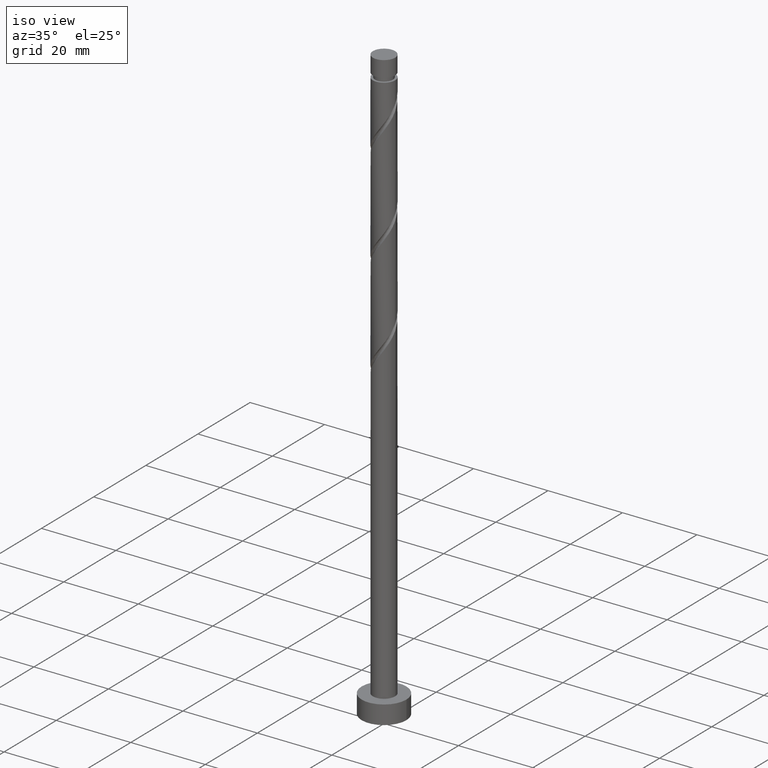
[diagram: clean part render]
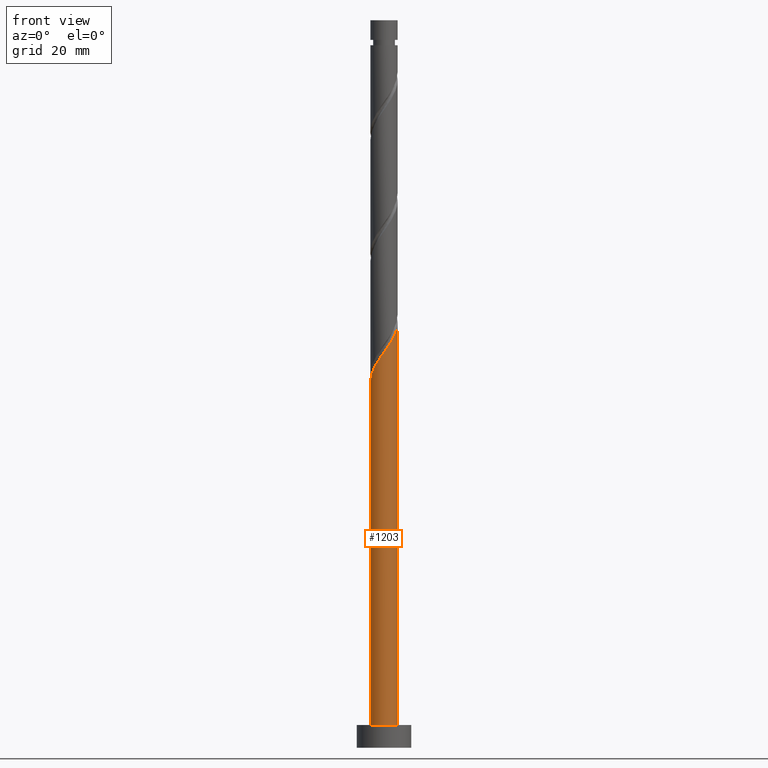
[diagram: tour spotlight — one face highlighted and labeled with its STEP entity id]
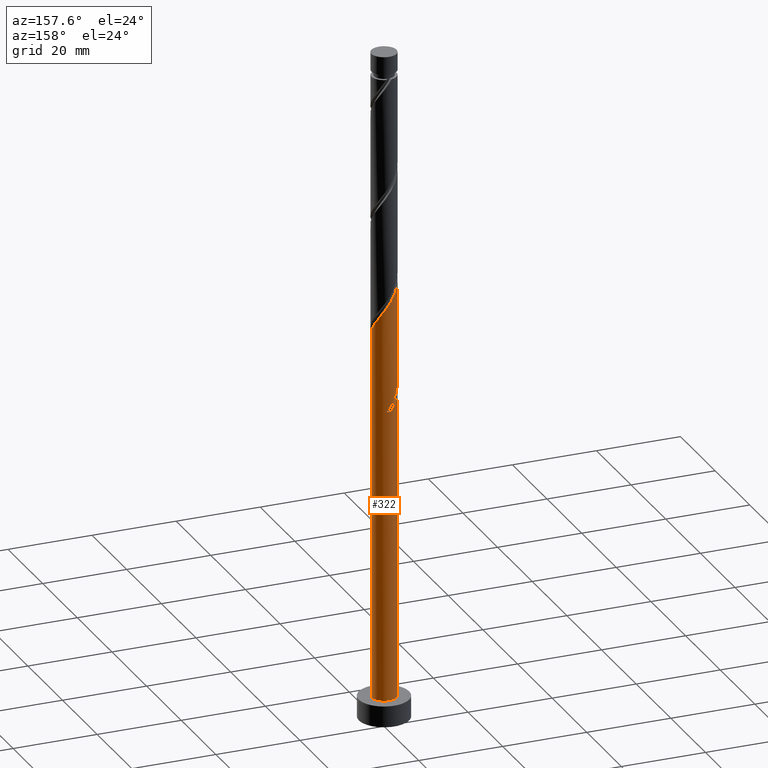
[diagram: tour spotlight — one face highlighted and labeled with its STEP entity id]
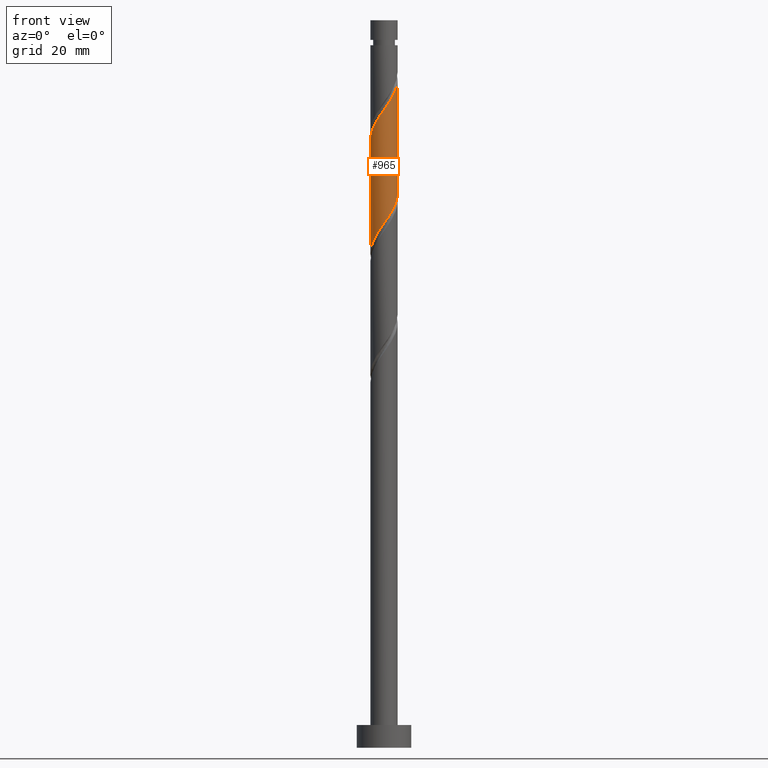
[diagram: tour spotlight — one face highlighted and labeled with its STEP entity id]
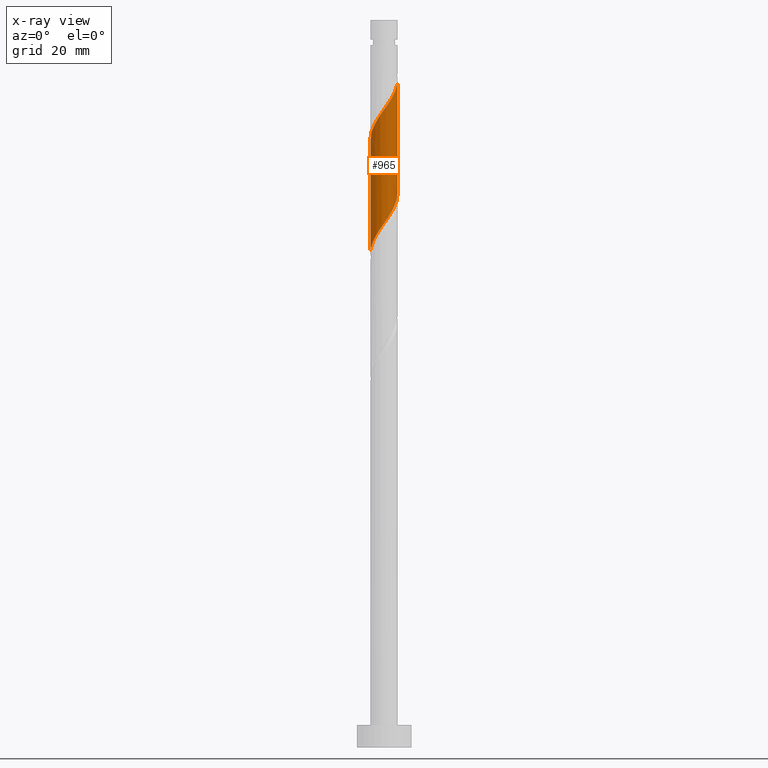
[diagram: x-ray of the same camera — body ghosted, this tour face saturated]
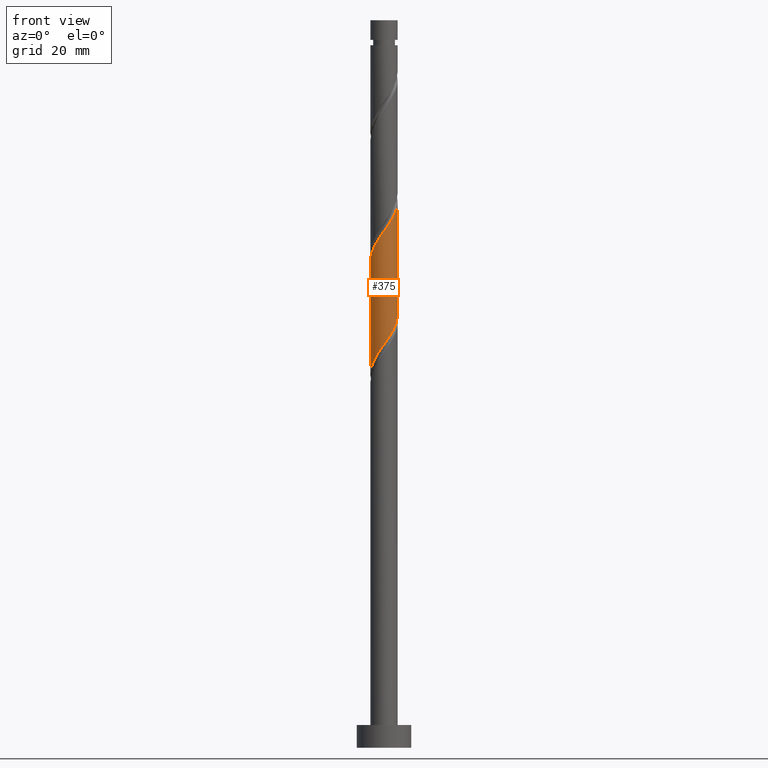
[diagram: tour spotlight — one face highlighted and labeled with its STEP entity id]
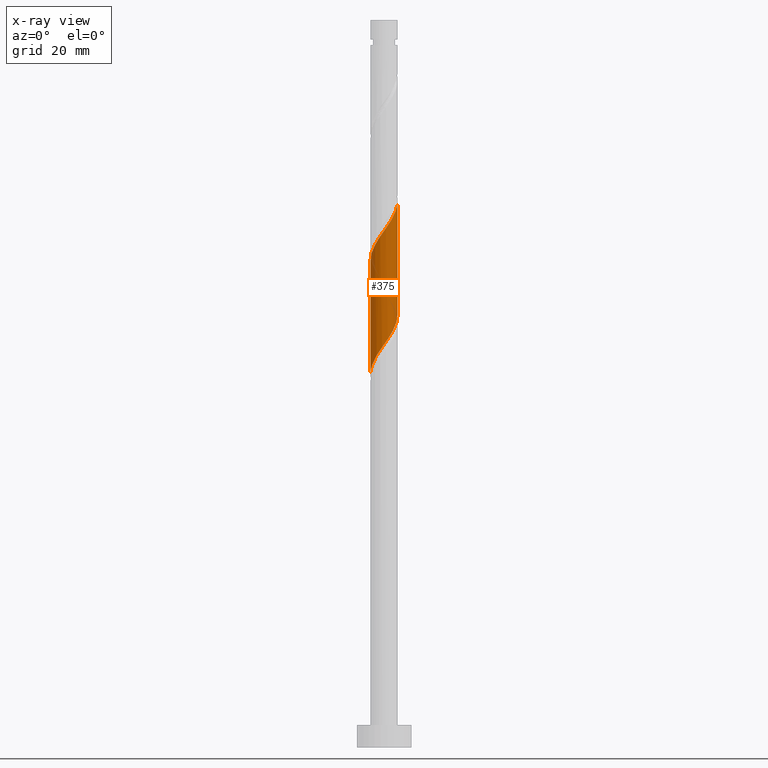
[diagram: x-ray of the same camera — body ghosted, this tour face saturated]
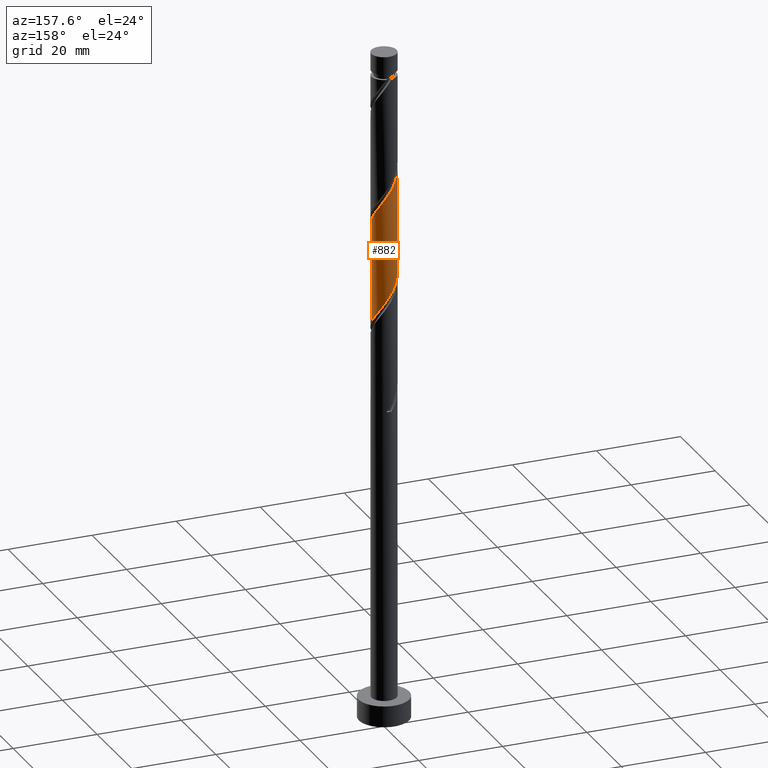
[diagram: tour spotlight — one face highlighted and labeled with its STEP entity id]
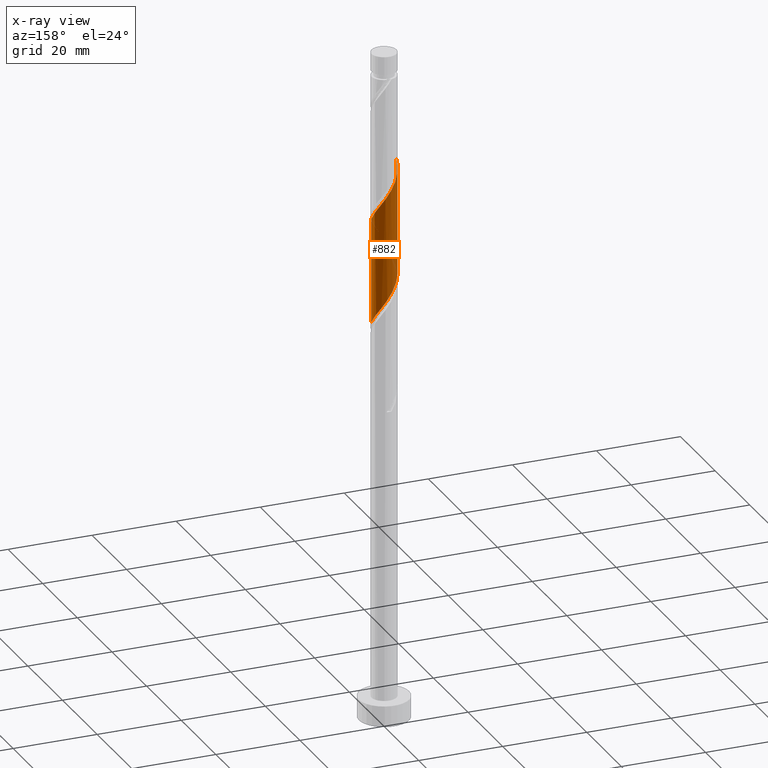
[diagram: x-ray of the same camera — body ghosted, this tour face saturated]
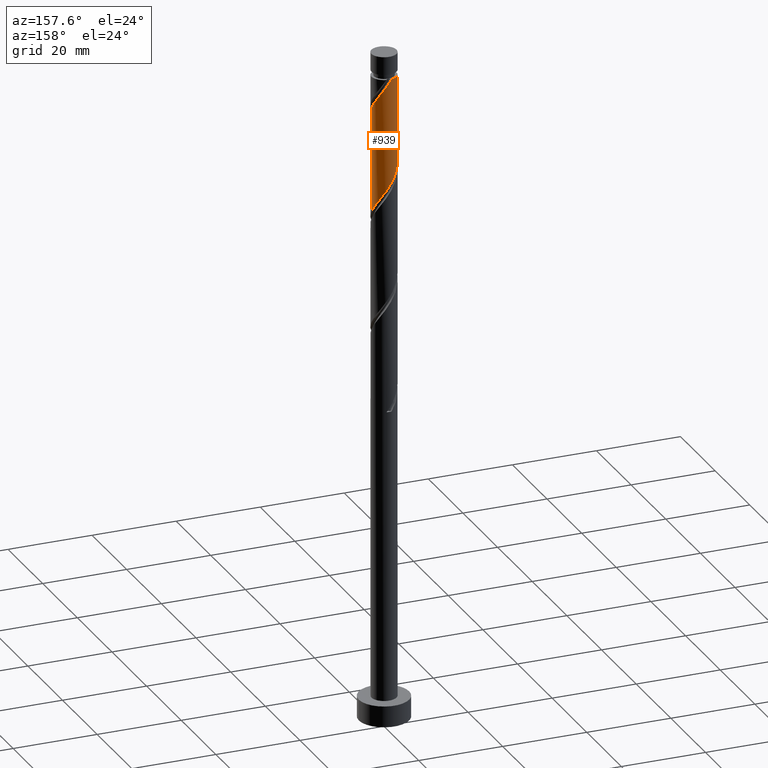
[diagram: tour spotlight — one face highlighted and labeled with its STEP entity id]
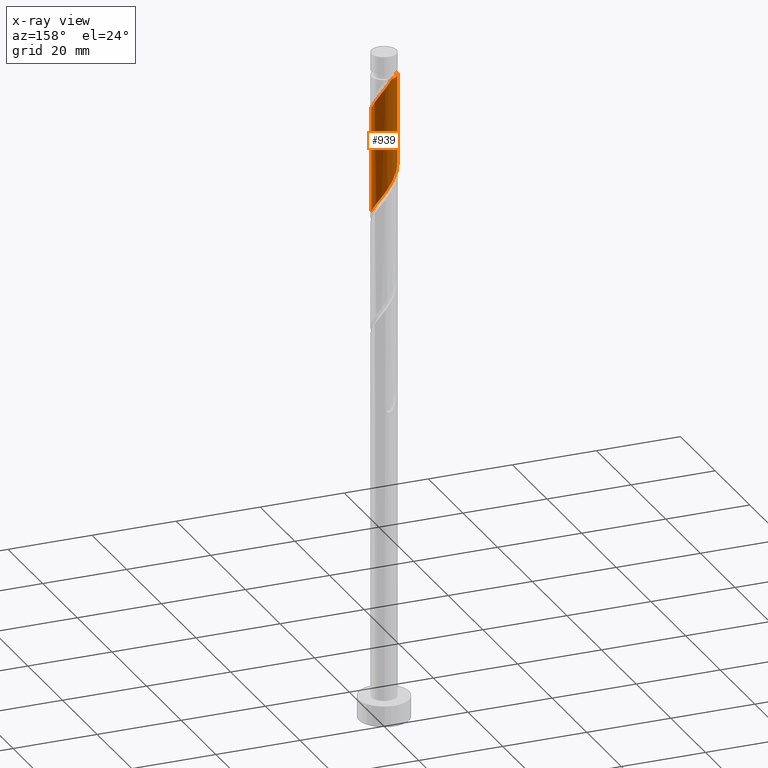
[diagram: x-ray of the same camera — body ghosted, this tour face saturated]
A machine part: a face-by-face anatomy tour. The part has 21 B-rep faces; the first image is the clean iso view, then the 6 largest visible faces are spotlighted one at a time (largest first), each with its STEP entity span.

Face 1 — front view, entity #1203. In plain terms, the highlighted cylindrical surface (edge-blend (fillet) strip) has radius 3 mm, axis along (-0, -0, -1).
Definition (entity closure, byte-faithful):
#32 = DIRECTION ( 'NONE',  ( -1.000000000000000000, 0.000000000000000000, 0.000000000000000000 ) ) ;
#49 = CARTESIAN_POINT ( 'NONE',  ( -2.679995620803128809, -1.415511657632333220, 82.38482257298360878 ) ) ;
#70 = CARTESIAN_POINT ( 'NONE',  ( 0.1742842779187505631, -3.025834557752177911, 87.23330742146846717 ) ) ;
#84 = CARTESIAN_POINT ( 'NONE',  ( 0.000000000000000000, 0.000000000000000000, 5.000000000000000000 ) ) ;
#131 = CARTESIAN_POINT ( 'NONE',  ( -3.000000000000006217, -1.869602587937041737E-15, 80.32324688156151637 ) ) ;
#153 = VERTEX_POINT ( 'NONE', #824 ) ;
#157 = CARTESIAN_POINT ( 'NONE',  ( 0.000000000000000000, 0.000000000000000000, 160.0000000000000000 ) ) ;
#195 = CARTESIAN_POINT ( 'NONE',  ( 3.000000000000006217, 1.705077560198581864E-15, 93.65658021489484497 ) ) ;
#198 = ORIENTED_EDGE ( 'NONE', *, *, #360, .T. ) ;
#204 = CARTESIAN_POINT ( 'NONE',  ( -2.172641248934616964, -2.113215508140333654, 83.59694378510484114 ) ) ;
#219 = CARTESIAN_POINT ( 'NONE',  ( -2.995035924847415210, -0.1725103152667149808, 80.56664075480180998 ) ) ;
#257 = AXIS2_PLACEMENT_3D ( 'NONE', #157, #329, #32 ) ;
#329 = DIRECTION ( 'NONE',  ( -0.000000000000000000, -0.000000000000000000, -1.000000000000000000 ) ) ;
#337 = CYLINDRICAL_SURFACE ( 'NONE', #257, 3.000000000000000444 ) ;
#358 = CARTESIAN_POINT ( 'NONE',  ( 2.400905109240610624, -1.849784970432863940, 90.86967105783213583 ) ) ;
#360 = EDGE_CURVE ( 'NONE', #499, #153, #686, .T. ) ;
#361 = DIRECTION ( 'NONE',  ( -0.000000000000000000, -0.000000000000000000, -1.000000000000000000 ) ) ;
#393 = DIRECTION ( 'NONE',  ( -0.000000000000000000, -0.000000000000000000, -1.000000000000000000 ) ) ;
#414 = CARTESIAN_POINT ( 'NONE',  ( -3.000000000000005773, -0.08632657957146638861, 80.44534488627975577 ) ) ;
#440 = CARTESIAN_POINT ( 'NONE',  ( 1.019700646609194683, -2.854165442247833973, 88.44542863358969953 ) ) ;
#451 =( BOUNDED_CURVE ( )  B_SPLINE_CURVE ( 2, ( #131, #414, #219, #1441, #835, #49, #1209, #204, #753, #879, #1092, #471, #739, #70, #746, #440, #1591, #597, #978, #358, #1235, #1225, #998, #985, #195 ),
 .UNSPECIFIED., .F., .T. ) 
 B_SPLINE_CURVE_WITH_KNOTS ( ( 3, 2, 2, 2, 2, 2, 2, 2, 2, 2, 2, 2, 3 ),
 ( 0.05452521624175128007, 0.05681818181818176772, 0.06818181818181823228, 0.07954545454545458583, 0.09090909090909093937, 0.1022727272727272929, 0.1136363636363636465, 0.1250000000000000000, 0.1363636363636363535, 0.1477272727272727071, 0.1590909090909090606, 0.1704545454545454142, 0.1795252162417510511 ),
 .UNSPECIFIED. ) 
 CURVE ( )  GEOMETRIC_REPRESENTATION_ITEM ( )  RATIONAL_B_SPLINE_CURVE ( ( 0.9061101570135652317, 0.9072237824201474510, 0.9090909090909249368, 0.8998376744372272862, 0.9090909090909249368, 0.8998376744372272862, 0.9090909090909249368, 0.8998376744372272862, 0.9090909090909249368, 0.8998376744372272862, 0.9090909090909249368, 0.8998376744372272862, 0.9090909090909249368, 0.8998376744372272862, 0.9090909090909249368, 0.8998376744372272862, 0.9090909090909249368, 0.8998376744372272862, 0.9090909090909249368, 0.8998376744372272862, 0.9090909090909249368, 0.8998376744372272862, 0.9090909090909249368, 0.9017048011080048830, 0.9061101570135650096 ) ) 
 REPRESENTATION_ITEM ( '' )  );
#471 = CARTESIAN_POINT ( 'NONE',  ( -0.6852515664601600553, -2.952368552718457995, 86.02118620934726323 ) ) ;
#499 = VERTEX_POINT ( 'NONE', #551 ) ;
#551 = CARTESIAN_POINT ( 'NONE',  ( -3.000000000000000444, 0.000000000000000000, 5.000000000000000000 ) ) ;
#563 = VERTEX_POINT ( 'NONE', #909 ) ;
#597 = CARTESIAN_POINT ( 'NONE',  ( 1.782506933304614627, -2.451268816988042776, 89.65754984571088926 ) ) ;
#677 = EDGE_CURVE ( 'NONE', #563, #938, #451, .T. ) ;
#686 = CIRCLE ( 'NONE', #756, 3.000000000000000444 ) ;
#739 = CARTESIAN_POINT ( 'NONE',  ( -0.2554836442707048016, -2.989101555235317065, 86.62724681540785809 ) ) ;
#746 = CARTESIAN_POINT ( 'NONE',  ( 0.5969924622639726230, -2.940000000000005720, 87.83936802752907624 ) ) ;
#753 = CARTESIAN_POINT ( 'NONE',  ( -1.830956826603535648, -2.376467357047839624, 84.20300439116546443 ) ) ;
#756 = AXIS2_PLACEMENT_3D ( 'NONE', #84, #1374, #1130 ) ;
#824 = CARTESIAN_POINT ( 'NONE',  ( 3.000000000000000444, 3.673940397442060361E-16, 5.000000000000000000 ) ) ;
#829 = ORIENTED_EDGE ( 'NONE', *, *, #1082, .F. ) ;
#835 = CARTESIAN_POINT ( 'NONE',  ( -2.825114153412480622, -1.009321564313633068, 81.77876196692298549 ) ) ;
#865 = CARTESIAN_POINT ( 'NONE',  ( -3.000000000000000444, 0.000000000000000000, 160.0000000000000000 ) ) ;
#879 = CARTESIAN_POINT ( 'NONE',  ( -1.489272404272454775, -2.639719205955345593, 84.80906499722605929 ) ) ;
#908 = EDGE_LOOP ( 'NONE', ( #829, #1581, #1513, #198 ) ) ;
#909 = CARTESIAN_POINT ( 'NONE',  ( -3.000000000000006217, -1.869602587937041737E-15, 80.32324688156153059 ) ) ;
#912 = LINE ( 'NONE', #1424, #1261 ) ;
#915 = CARTESIAN_POINT ( 'NONE',  ( 3.000000000000006217, 1.705077560198582061E-15, 93.65658021489484497 ) ) ;
#938 = VERTEX_POINT ( 'NONE', #915 ) ;
#978 = CARTESIAN_POINT ( 'NONE',  ( 2.091706021272612848, -2.150526893710452914, 90.26361045177151254 ) ) ;
#985 = CARTESIAN_POINT ( 'NONE',  ( 3.000000000000004441, -0.3435867821553788559, 93.17062026192354551 ) ) ;
#998 = CARTESIAN_POINT ( 'NONE',  ( 2.922317697815706161, -0.6782766935647636108, 92.68785287601394884 ) ) ;
#1082 = EDGE_CURVE ( 'NONE', #938, #153, #912, .T. ) ;
#1092 = CARTESIAN_POINT ( 'NONE',  ( -1.087261985366308137, -2.796043879336900684, 85.41512560328666837 ) ) ;
#1130 = DIRECTION ( 'NONE',  ( 1.000000000000000000, 0.000000000000000000, 0.000000000000000000 ) ) ;
#1148 = EDGE_CURVE ( 'NONE', #563, #499, #1497, .T. ) ;
#1192 = VECTOR ( 'NONE', #361, 1000.000000000000000 ) ;
#1203 = ADVANCED_FACE ( 'NONE', ( #1465 ), #337, .T. ) ;
#1209 = CARTESIAN_POINT ( 'NONE',  ( -2.426318434868872664, -1.764363582886333104, 82.99088317904423207 ) ) ;
#1225 = CARTESIAN_POINT ( 'NONE',  ( 2.824796231958413006, -1.098442546668023212, 92.08179226995333977 ) ) ;
#1235 = CARTESIAN_POINT ( 'NONE',  ( 2.612850670599510927, -1.474113758550444464, 91.47573166389270227 ) ) ;
#1261 = VECTOR ( 'NONE', #393, 1000.000000000000000 ) ;
#1374 = DIRECTION ( 'NONE',  ( 0.000000000000000000, 0.000000000000000000, 1.000000000000000000 ) ) ;
#1424 = CARTESIAN_POINT ( 'NONE',  ( 3.000000000000000444, 3.673940397442060361E-16, 160.0000000000000000 ) ) ;
#1441 = CARTESIAN_POINT ( 'NONE',  ( -2.970232686021831547, -0.6031314709949331387, 81.17270136086239063 ) ) ;
#1465 = FACE_OUTER_BOUND ( 'NONE', #908, .T. ) ;
#1497 = LINE ( 'NONE', #865, #1192 ) ;
#1513 = ORIENTED_EDGE ( 'NONE', *, *, #1148, .T. ) ;
#1581 = ORIENTED_EDGE ( 'NONE', *, *, #677, .F. ) ;
#1591 = CARTESIAN_POINT ( 'NONE',  ( 1.401103789956904988, -2.652717129617939040, 89.05148923965026597 ) ) ;

Face 2 — auxiliary view, entity #322. In plain terms, the highlighted cylindrical surface (edge-blend (fillet) strip) has radius 3 mm, axis along (-0, -0, -1).
Definition (entity closure, byte-faithful):
#6 = CIRCLE ( 'NONE', #374, 3.000000000000000444 ) ;
#20 = CARTESIAN_POINT ( 'NONE',  ( 0.5969924622639732892, 2.940000000000001279, 74.50603469419574765 ) ) ;
#33 = DIRECTION ( 'NONE',  ( -0.000000000000000000, -0.000000000000000000, -1.000000000000000000 ) ) ;
#95 = CARTESIAN_POINT ( 'NONE',  ( -3.000000000000006217, -1.869602587937041737E-15, 106.9899135482282162 ) ) ;
#101 = VERTEX_POINT ( 'NONE', #20 ) ;
#114 = CARTESIAN_POINT ( 'NONE',  ( 3.000000000000006661, 0.08632657957145752070, 93.77867821961305594 ) ) ;
#118 = CARTESIAN_POINT ( 'NONE',  ( -1.489272404272450556, 2.639719205955341597, 77.53633772449875039 ) ) ;
#146 = EDGE_CURVE ( 'NONE', #153, #499, #6, .T. ) ;
#153 = VERTEX_POINT ( 'NONE', #824 ) ;
#168 = CARTESIAN_POINT ( 'NONE',  ( 2.995035924847415210, 0.1725103152667146755, 93.89997408813512436 ) ) ;
#178 = ORIENTED_EDGE ( 'NONE', *, *, #434, .F. ) ;
#196 = DIRECTION ( 'NONE',  ( 0.000000000000000000, -0.000000000000000000, -1.000000000000000000 ) ) ;
#232 = EDGE_LOOP ( 'NONE', ( #237, #1323, #383, #484, #1154, #1355, #1273, #178 ) ) ;
#237 = ORIENTED_EDGE ( 'NONE', *, *, #1538, .F. ) ;
#240 = CARTESIAN_POINT ( 'NONE',  ( 2.970232686021831547, 0.6031314709949328057, 94.50603469419574765 ) ) ;
#245 = CARTESIAN_POINT ( 'NONE',  ( -2.825114153412474849, 1.009321564313631958, 80.56664075480182419 ) ) ;
#255 = CARTESIAN_POINT ( 'NONE',  ( -0.6852515664601587231, 2.952368552718451777, 76.32421651237757487 ) ) ;
#271 = CARTESIAN_POINT ( 'NONE',  ( 0.000000000000000000, 0.000000000000000000, 5.000000000000000000 ) ) ;
#303 = CARTESIAN_POINT ( 'NONE',  ( 2.679995620803128809, 1.415511657632332110, 95.71815590631698001 ) ) ;
#311 = CARTESIAN_POINT ( 'NONE',  ( -3.000000000000006217, -1.869602587937041737E-15, 106.9899135482282304 ) ) ;
#322 = ADVANCED_FACE ( 'NONE', ( #1573 ), #1439, .T. ) ;
#350 = DIRECTION ( 'NONE',  ( -1.000000000000000000, 0.000000000000000000, 0.000000000000000000 ) ) ;
#361 = DIRECTION ( 'NONE',  ( -0.000000000000000000, -0.000000000000000000, -1.000000000000000000 ) ) ;
#366 = CARTESIAN_POINT ( 'NONE',  ( -3.000000000000001332, 0.08632657957146898375, 81.90005783544505391 ) ) ;
#374 = AXIS2_PLACEMENT_3D ( 'NONE', #271, #438, #1177 ) ;
#376 =( BOUNDED_CURVE ( )  B_SPLINE_CURVE ( 2, ( #1180, #701, #1068, #658, #1662, #921, #1569, #1388, #1262, #1145, #794 ),
 .UNSPECIFIED., .F., .T. ) 
 B_SPLINE_CURVE_WITH_KNOTS ( ( 3, 2, 2, 2, 2, 3 ),
 ( 0.000000000000000000, 0.01136363636363635354, 0.02272727272727270709, 0.03409090909090906063, 0.04545454545454541417, 0.05452521624175128007 ),
 .UNSPECIFIED. ) 
 CURVE ( )  GEOMETRIC_REPRESENTATION_ITEM ( )  RATIONAL_B_SPLINE_CURVE ( ( 0.9090909090909249368, 0.8998376744372272862, 0.9090909090909249368, 0.8998376744372272862, 0.9090909090909249368, 0.8998376744372272862, 0.9090909090909249368, 0.8998376744372272862, 0.9090909090909249368, 0.9017048011080047720, 0.9061101570135652317 ) ) 
 REPRESENTATION_ITEM ( '' )  );
#383 = ORIENTED_EDGE ( 'NONE', *, *, #146, .T. ) ;
#389 = VERTEX_POINT ( 'NONE', #95 ) ;
#393 = DIRECTION ( 'NONE',  ( -0.000000000000000000, -0.000000000000000000, -1.000000000000000000 ) ) ;
#396 = CARTESIAN_POINT ( 'NONE',  ( -1.087261985366304362, 2.796043879336897131, 76.93027711843818395 ) ) ;
#416 = CARTESIAN_POINT ( 'NONE',  ( -1.782506933304614405, 2.451268816988042776, 102.9908831790442179 ) ) ;
#434 = EDGE_CURVE ( 'NONE', #389, #1134, #1138, .T. ) ;
#438 = DIRECTION ( 'NONE',  ( 0.000000000000000000, 0.000000000000000000, 1.000000000000000000 ) ) ;
#484 = ORIENTED_EDGE ( 'NONE', *, *, #1148, .F. ) ;
#499 = VERTEX_POINT ( 'NONE', #551 ) ;
#512 = CARTESIAN_POINT ( 'NONE',  ( 0.1742842779187508129, 3.025834557752173026, 75.11209530025632830 ) ) ;
#526 = CARTESIAN_POINT ( 'NONE',  ( 1.489272404272453665, 2.639719205955346926, 98.14239833055940210 ) ) ;
#536 = CARTESIAN_POINT ( 'NONE',  ( -0.5969924622639722900, 2.940000000000005720, 101.1727013608624475 ) ) ;
#551 = CARTESIAN_POINT ( 'NONE',  ( -3.000000000000000444, 0.000000000000000000, 5.000000000000000000 ) ) ;
#563 = VERTEX_POINT ( 'NONE', #909 ) ;
#582 = CARTESIAN_POINT ( 'NONE',  ( -0.5969924622639721790, 2.940000000000005720, 74.50603469419574765 ) ) ;
#632 =( BOUNDED_CURVE ( )  B_SPLINE_CURVE ( 2, ( #1504, #366, #1242, #768, #245, #802, #1403, #636, #1633, #118, #396, #255, #887, #512, #1011 ),
 .UNSPECIFIED., .F., .T. ) 
 B_SPLINE_CURVE_WITH_KNOTS ( ( 3, 2, 2, 2, 2, 2, 2, 3 ),
 ( 0.9295252162417513286, 0.9318181818181817677, 0.9431818181818182323, 0.9545454545454545858, 0.9659090909090909394, 0.9772727272727272929, 0.9886363636363636465, 1.000000000000000000 ),
 .UNSPECIFIED. ) 
 CURVE ( )  GEOMETRIC_REPRESENTATION_ITEM ( )  RATIONAL_B_SPLINE_CURVE ( ( 0.9061101570135583483, 0.9072237824201403456, 0.9090909090909178314, 0.8998376744372202918, 0.9090909090909178314, 0.8998376744372202918, 0.9090909090909178314, 0.8998376744372202918, 0.9090909090909178314, 0.8998376744372202918, 0.9090909090909178314, 0.8998376744372202918, 0.9090909090909178314, 0.8998376744372202918, 0.9090909090909178314 ) ) 
 REPRESENTATION_ITEM ( '' )  );
#636 = CARTESIAN_POINT ( 'NONE',  ( -2.172641248934612968, 2.113215508140329657, 78.74845893661996854 ) ) ;
#649 = CARTESIAN_POINT ( 'NONE',  ( 2.426318434868872664, 1.764363582886332438, 96.32421651237756066 ) ) ;
#658 = CARTESIAN_POINT ( 'NONE',  ( -1.782506933304614405, 2.451268816988042776, 76.32421651237756066 ) ) ;
#659 = CARTESIAN_POINT ( 'NONE',  ( -2.400905109240611512, 1.849784970432863718, 104.2030043911654786 ) ) ;
#670 = CARTESIAN_POINT ( 'NONE',  ( -0.1742842779187500912, 3.025834557752177911, 100.5666407548018100 ) ) ;
#672 = EDGE_CURVE ( 'NONE', #1587, #563, #376, .T. ) ;
#701 = CARTESIAN_POINT ( 'NONE',  ( -1.019700646609195349, 2.854165442247833528, 75.11209530025635672 ) ) ;
#707 = DIRECTION ( 'NONE',  ( -1.000000000000000000, 0.000000000000000000, 0.000000000000000000 ) ) ;
#768 = CARTESIAN_POINT ( 'NONE',  ( -2.970232686021827107, 0.6031314709949330277, 81.17270136086241905 ) ) ;
#775 = CARTESIAN_POINT ( 'NONE',  ( 2.825114153412480622, 1.009321564313632624, 95.11209530025638514 ) ) ;
#794 = CARTESIAN_POINT ( 'NONE',  ( -3.000000000000006217, -1.869602587937041737E-15, 80.32324688156151637 ) ) ;
#802 = CARTESIAN_POINT ( 'NONE',  ( -2.679995620803123035, 1.415511657632330778, 79.96058014874121511 ) ) ;
#824 = CARTESIAN_POINT ( 'NONE',  ( 3.000000000000000444, 3.673940397442060361E-16, 5.000000000000000000 ) ) ;
#865 = CARTESIAN_POINT ( 'NONE',  ( -3.000000000000000444, 0.000000000000000000, 160.0000000000000000 ) ) ;
#887 = CARTESIAN_POINT ( 'NONE',  ( -0.2554836442707038580, 2.989101555235311736, 75.71815590631696580 ) ) ;
#891 = AXIS2_PLACEMENT_3D ( 'NONE', #906, #196, #350 ) ;
#906 = CARTESIAN_POINT ( 'NONE',  ( 0.000000000000000000, 0.000000000000000000, 74.50603469419576186 ) ) ;
#909 = CARTESIAN_POINT ( 'NONE',  ( -3.000000000000006217, -1.869602587937041737E-15, 80.32324688156153059 ) ) ;
#911 = CARTESIAN_POINT ( 'NONE',  ( 1.087261985366306583, 2.796043879336901572, 98.74845893661999696 ) ) ;
#912 = LINE ( 'NONE', #1424, #1261 ) ;
#915 = CARTESIAN_POINT ( 'NONE',  ( 3.000000000000006217, 1.705077560198582061E-15, 93.65658021489484497 ) ) ;
#921 = CARTESIAN_POINT ( 'NONE',  ( -2.400905109240611512, 1.849784970432863718, 77.53633772449877881 ) ) ;
#929 = EDGE_CURVE ( 'NONE', #1134, #101, #632, .T. ) ;
#938 = VERTEX_POINT ( 'NONE', #915 ) ;
#951 = CARTESIAN_POINT ( 'NONE',  ( -3.000000000000007105, 0.3435867821553623691, 106.5039535952568741 ) ) ;
#1000 = EDGE_CURVE ( 'NONE', #1587, #101, #1372, .T. ) ;
#1011 = CARTESIAN_POINT ( 'NONE',  ( 0.5969924622639732892, 2.940000000000001279, 74.50603469419574765 ) ) ;
#1033 = CARTESIAN_POINT ( 'NONE',  ( -2.922317697815706161, 0.6782766935647638329, 106.0211862093472490 ) ) ;
#1044 = CARTESIAN_POINT ( 'NONE',  ( -1.019700646609195349, 2.854165442247833528, 101.7787619669229997 ) ) ;
#1068 = CARTESIAN_POINT ( 'NONE',  ( -1.401103789956905432, 2.652717129617938152, 75.71815590631693738 ) ) ;
#1082 = EDGE_CURVE ( 'NONE', #938, #153, #912, .T. ) ;
#1114 = CARTESIAN_POINT ( 'NONE',  ( -3.000000000000000444, 0.000000000000000000, 160.0000000000000000 ) ) ;
#1134 = VERTEX_POINT ( 'NONE', #1204 ) ;
#1138 = LINE ( 'NONE', #1114, #1642 ) ;
#1139 = CARTESIAN_POINT ( 'NONE',  ( 1.830956826603534982, 2.376467357047840068, 97.53633772449876460 ) ) ;
#1145 = CARTESIAN_POINT ( 'NONE',  ( -3.000000000000005773, 0.3435867821553703627, 79.83728692859021692 ) ) ;
#1146 = CARTESIAN_POINT ( 'NONE',  ( -2.612850670599510927, 1.474113758550444020, 104.8090649972260735 ) ) ;
#1148 = EDGE_CURVE ( 'NONE', #563, #499, #1497, .T. ) ;
#1154 = ORIENTED_EDGE ( 'NONE', *, *, #672, .F. ) ;
#1177 = DIRECTION ( 'NONE',  ( 1.000000000000000000, 0.000000000000000000, 0.000000000000000000 ) ) ;
#1180 = CARTESIAN_POINT ( 'NONE',  ( -0.5969924622639721790, 2.940000000000005720, 74.50603469419574765 ) ) ;
#1186 = CARTESIAN_POINT ( 'NONE',  ( 0.2554836442707051347, 2.989101555235317065, 99.96058014874120090 ) ) ;
#1192 = VECTOR ( 'NONE', #361, 1000.000000000000000 ) ;
#1204 = CARTESIAN_POINT ( 'NONE',  ( -3.000000000000000000, 2.767011830146842944E-15, 82.02215584016326488 ) ) ;
#1211 =( BOUNDED_CURVE ( )  B_SPLINE_CURVE ( 2, ( #1548, #114, #168, #240, #775, #303, #649, #1400, #1139, #526, #911, #1274, #1186, #670, #536, #1044, #1444, #416, #1389, #659, #1146, #1655, #1033, #951, #311 ),
 .UNSPECIFIED., .F., .T. ) 
 B_SPLINE_CURVE_WITH_KNOTS ( ( 3, 2, 2, 2, 2, 2, 2, 2, 2, 2, 2, 2, 3 ),
 ( 0.1795252162417510511, 0.1818181818181817677, 0.1931818181818182323, 0.2045454545454545858, 0.2159090909090909394, 0.2272727272727272929, 0.2386363636363636465, 0.2500000000000000000, 0.2613636363636363535, 0.2727272727272727071, 0.2840909090909090606, 0.2954545454545454142, 0.3045252162417514952 ),
 .UNSPECIFIED. ) 
 CURVE ( )  GEOMETRIC_REPRESENTATION_ITEM ( )  RATIONAL_B_SPLINE_CURVE ( ( 0.9061101570135650096, 0.9072237824201472289, 0.9090909090909249368, 0.8998376744372272862, 0.9090909090909249368, 0.8998376744372272862, 0.9090909090909249368, 0.8998376744372272862, 0.9090909090909249368, 0.8998376744372272862, 0.9090909090909249368, 0.8998376744372272862, 0.9090909090909249368, 0.8998376744372272862, 0.9090909090909249368, 0.8998376744372272862, 0.9090909090909249368, 0.8998376744372272862, 0.9090909090909249368, 0.8998376744372272862, 0.9090909090909249368, 0.8998376744372272862, 0.9090909090909249368, 0.9017048011080046610, 0.9061101570135654537 ) ) 
 REPRESENTATION_ITEM ( '' )  );
#1242 = CARTESIAN_POINT ( 'NONE',  ( -2.995035924847410325, 0.1725103152667156470, 81.77876196692299970 ) ) ;
#1261 = VECTOR ( 'NONE', #393, 1000.000000000000000 ) ;
#1262 = CARTESIAN_POINT ( 'NONE',  ( -2.922317697815706161, 0.6782766935647638329, 79.35451954268059183 ) ) ;
#1273 = ORIENTED_EDGE ( 'NONE', *, *, #929, .F. ) ;
#1274 = CARTESIAN_POINT ( 'NONE',  ( 0.6852515664601604994, 2.952368552718457551, 99.35451954268060604 ) ) ;
#1308 = CARTESIAN_POINT ( 'NONE',  ( 0.000000000000000000, 0.000000000000000000, 160.0000000000000000 ) ) ;
#1323 = ORIENTED_EDGE ( 'NONE', *, *, #1082, .T. ) ;
#1355 = ORIENTED_EDGE ( 'NONE', *, *, #1000, .T. ) ;
#1368 = AXIS2_PLACEMENT_3D ( 'NONE', #1308, #33, #707 ) ;
#1372 = CIRCLE ( 'NONE', #891, 3.000000000000000444 ) ;
#1388 = CARTESIAN_POINT ( 'NONE',  ( -2.824796231958412118, 1.098442546668024322, 78.74845893661999696 ) ) ;
#1389 = CARTESIAN_POINT ( 'NONE',  ( -2.091706021272612848, 2.150526893710452914, 103.5969437851048411 ) ) ;
#1400 = CARTESIAN_POINT ( 'NONE',  ( 2.172641248934617852, 2.113215508140331877, 96.93027711843812710 ) ) ;
#1403 = CARTESIAN_POINT ( 'NONE',  ( -2.426318434868868223, 1.764363582886330217, 79.35451954268059183 ) ) ;
#1424 = CARTESIAN_POINT ( 'NONE',  ( 3.000000000000000444, 3.673940397442060361E-16, 160.0000000000000000 ) ) ;
#1439 = CYLINDRICAL_SURFACE ( 'NONE', #1368, 3.000000000000000444 ) ;
#1444 = CARTESIAN_POINT ( 'NONE',  ( -1.401103789956905432, 2.652717129617938152, 102.3848225729836230 ) ) ;
#1497 = LINE ( 'NONE', #865, #1192 ) ;
#1501 = DIRECTION ( 'NONE',  ( -0.000000000000000000, -0.000000000000000000, -1.000000000000000000 ) ) ;
#1504 = CARTESIAN_POINT ( 'NONE',  ( -2.999999999999999556, 2.767011830146842550E-15, 82.02215584016326488 ) ) ;
#1538 = EDGE_CURVE ( 'NONE', #938, #389, #1211, .T. ) ;
#1548 = CARTESIAN_POINT ( 'NONE',  ( 3.000000000000006217, 1.705077560198581864E-15, 93.65658021489484497 ) ) ;
#1569 = CARTESIAN_POINT ( 'NONE',  ( -2.612850670599510927, 1.474113758550444020, 78.14239833055940210 ) ) ;
#1573 = FACE_OUTER_BOUND ( 'NONE', #232, .T. ) ;
#1587 = VERTEX_POINT ( 'NONE', #582 ) ;
#1633 = CARTESIAN_POINT ( 'NONE',  ( -1.830956826603531651, 2.376467357047835627, 78.14239833055937368 ) ) ;
#1642 = VECTOR ( 'NONE', #1501, 1000.000000000000000 ) ;
#1655 = CARTESIAN_POINT ( 'NONE',  ( -2.824796231958412118, 1.098442546668024322, 105.4151256032866684 ) ) ;
#1662 = CARTESIAN_POINT ( 'NONE',  ( -2.091706021272612848, 2.150526893710452914, 76.93027711843816974 ) ) ;

Face 3 — front view, entity #965. An x-ray twin of the same camera follows (body ghosted, this face saturated) — the face is partly hidden behind the body. In plain terms, the highlighted cylindrical surface (edge-blend (fillet) strip) has radius 3 mm, axis along (-0, -0, -1).
Definition (entity closure, byte-faithful):
#8 = CARTESIAN_POINT ( 'NONE',  ( 2.091706021272612848, -2.150526893710452914, 143.5969437851048554 ) ) ;
#27 = CARTESIAN_POINT ( 'NONE',  ( 0.1742842779187505631, -3.025834557752177911, 140.5666407548018242 ) ) ;
#99 = CARTESIAN_POINT ( 'NONE',  ( -2.091706021272609739, -2.150526893710448917, 112.0817922699533398 ) ) ;
#106 = CARTESIAN_POINT ( 'NONE',  ( -2.999999999999999556, -0.3435867821553670320, 109.1747824598012500 ) ) ;
#125 = CARTESIAN_POINT ( 'NONE',  ( -3.000000000000000000, 2.767011830146842944E-15, 108.6888225068299505 ) ) ;
#140 = CARTESIAN_POINT ( 'NONE',  ( 2.922317697815706161, -0.6782766935647636108, 146.0211862093472917 ) ) ;
#159 = CARTESIAN_POINT ( 'NONE',  ( -2.172641248934616964, -2.113215508140333654, 136.9302771184381982 ) ) ;
#167 = CARTESIAN_POINT ( 'NONE',  ( 3.000000000000006217, 1.705077560198582258E-15, 146.9899135482282304 ) ) ;
#220 = EDGE_LOOP ( 'NONE', ( #1237, #1088, #1373, #1445 ) ) ;
#222 = CARTESIAN_POINT ( 'NONE',  ( 3.000000000000006217, 1.705077560198582061E-15, 146.9899135482282304 ) ) ;
#269 = CARTESIAN_POINT ( 'NONE',  ( -2.612850670599506930, -1.474113758550439801, 110.8696710578320932 ) ) ;
#277 = EDGE_CURVE ( 'NONE', #1069, #362, #1087, .T. ) ;
#349 = CARTESIAN_POINT ( 'NONE',  ( 2.172641248934613856, -2.113215508140329657, 118.7484589366199970 ) ) ;
#362 = VERTEX_POINT ( 'NONE', #222 ) ;
#384 = LINE ( 'NONE', #1639, #972 ) ;
#402 = CARTESIAN_POINT ( 'NONE',  ( 3.000000000000000444, 3.673940397442060361E-16, 160.0000000000000000 ) ) ;
#430 = CARTESIAN_POINT ( 'NONE',  ( -2.995035924847415210, -0.1725103152667149808, 133.8999740881351386 ) ) ;
#447 = CARTESIAN_POINT ( 'NONE',  ( 3.000000000000004885, -0.3435867821553759138, 146.5039535952568599 ) ) ;
#460 =( BOUNDED_CURVE ( )  B_SPLINE_CURVE ( 2, ( #1608, #1345, #1217, #611, #1620, #1486, #1493, #349, #872, #1353, #497, #896, #1394, #1385, #1248, #1255, #1028, #1377, #99, #653, #269, #1127, #1658, #106, #676 ),
 .UNSPECIFIED., .F., .T. ) 
 B_SPLINE_CURVE_WITH_KNOTS ( ( 3, 2, 2, 2, 2, 2, 2, 2, 2, 2, 2, 2, 3 ),
 ( 0.5545252162417515507, 0.5568181818181817677, 0.5681818181818182323, 0.5795454545454545858, 0.5909090909090909394, 0.6022727272727272929, 0.6136363636363636465, 0.6250000000000000000, 0.6363636363636363535, 0.6477272727272727071, 0.6590909090909090606, 0.6704545454545454142, 0.6795252162417513286 ),
 .UNSPECIFIED. ) 
 CURVE ( )  GEOMETRIC_REPRESENTATION_ITEM ( )  RATIONAL_B_SPLINE_CURVE ( ( 0.9061101570135584593, 0.9072237824201405676, 0.9090909090909178314, 0.8998376744372202918, 0.9090909090909178314, 0.8998376744372202918, 0.9090909090909178314, 0.8998376744372202918, 0.9090909090909178314, 0.8998376744372202918, 0.9090909090909178314, 0.8998376744372202918, 0.9090909090909178314, 0.8998376744372202918, 0.9090909090909178314, 0.8998376744372202918, 0.9090909090909178314, 0.8998376744372202918, 0.9090909090909178314, 0.8998376744372202918, 0.9090909090909178314, 0.8998376744372202918, 0.9090909090909178314, 0.9017048011079977776, 0.9061101570135583483 ) ) 
 REPRESENTATION_ITEM ( '' )  );
#497 = CARTESIAN_POINT ( 'NONE',  ( 1.087261985366304362, -2.796043879336897131, 116.9302771184381697 ) ) ;
#521 = DIRECTION ( 'NONE',  ( -0.000000000000000000, -0.000000000000000000, -1.000000000000000000 ) ) ;
#532 = CARTESIAN_POINT ( 'NONE',  ( -1.489272404272454775, -2.639719205955345593, 138.1423983305594163 ) ) ;
#547 = CARTESIAN_POINT ( 'NONE',  ( 2.400905109240610624, -1.849784970432863940, 144.2030043911654502 ) ) ;
#554 = DIRECTION ( 'NONE',  ( -0.000000000000000000, -0.000000000000000000, -1.000000000000000000 ) ) ;
#567 = CARTESIAN_POINT ( 'NONE',  ( -3.000000000000006661, -0.08632657957146071259, 133.7786782196131128 ) ) ;
#583 = VERTEX_POINT ( 'NONE', #125 ) ;
#611 = CARTESIAN_POINT ( 'NONE',  ( 2.970232686021826218, -0.6031314709949334718, 121.1727013608624191 ) ) ;
#629 = CARTESIAN_POINT ( 'NONE',  ( -3.000000000000006217, -1.869602587937041737E-15, 133.6565802148948592 ) ) ;
#653 = CARTESIAN_POINT ( 'NONE',  ( -2.400905109240607072, -1.849784970432858833, 111.4757316638927023 ) ) ;
#656 = CARTESIAN_POINT ( 'NONE',  ( -2.679995620803128809, -1.415511657632333220, 135.7181559063169516 ) ) ;
#660 = EDGE_CURVE ( 'NONE', #362, #1112, #1420, .T. ) ;
#665 = CARTESIAN_POINT ( 'NONE',  ( -0.2554836442707048016, -2.989101555235317065, 139.9605801487412009 ) ) ;
#676 = CARTESIAN_POINT ( 'NONE',  ( -2.999999999999999556, 2.767011830146842550E-15, 108.6888225068299647 ) ) ;
#695 = DIRECTION ( 'NONE',  ( -0.000000000000000000, -0.000000000000000000, -1.000000000000000000 ) ) ;
#700 = CARTESIAN_POINT ( 'NONE',  ( -0.6852515664601600553, -2.952368552718457995, 139.3545195426806060 ) ) ;
#797 = EDGE_CURVE ( 'NONE', #1112, #583, #460, .T. ) ;
#803 = CARTESIAN_POINT ( 'NONE',  ( -2.825114153412480622, -1.009321564313633068, 135.1120953002563567 ) ) ;
#872 = CARTESIAN_POINT ( 'NONE',  ( 1.830956826603530985, -2.376467357047836071, 118.1423983305593879 ) ) ;
#896 = CARTESIAN_POINT ( 'NONE',  ( 0.6852515664601589451, -2.952368552718451333, 116.3242165123775607 ) ) ;
#919 = CARTESIAN_POINT ( 'NONE',  ( 1.019700646609194683, -2.854165442247833973, 141.7787619669230423 ) ) ;
#942 = CARTESIAN_POINT ( 'NONE',  ( -2.970232686021831547, -0.6031314709949331387, 134.5060346941957903 ) ) ;
#965 = ADVANCED_FACE ( 'NONE', ( #1537 ), #1278, .T. ) ;
#972 = VECTOR ( 'NONE', #554, 1000.000000000000000 ) ;
#990 = VECTOR ( 'NONE', #695, 1000.000000000000000 ) ;
#1019 = DIRECTION ( 'NONE',  ( -1.000000000000000000, 0.000000000000000000, 0.000000000000000000 ) ) ;
#1028 = CARTESIAN_POINT ( 'NONE',  ( -1.401103789956902768, -2.652717129617932823, 113.2939134820745295 ) ) ;
#1030 = CARTESIAN_POINT ( 'NONE',  ( -1.087261985366308137, -2.796043879336900684, 138.7484589366199828 ) ) ;
#1038 = CARTESIAN_POINT ( 'NONE',  ( 0.000000000000000000, 0.000000000000000000, 160.0000000000000000 ) ) ;
#1041 = CARTESIAN_POINT ( 'NONE',  ( 2.612850670599510927, -1.474113758550444464, 144.8090649972260735 ) ) ;
#1066 = CARTESIAN_POINT ( 'NONE',  ( -3.000000000000006217, -1.869602587937041737E-15, 133.6565802148948592 ) ) ;
#1069 = VERTEX_POINT ( 'NONE', #629 ) ;
#1087 =( BOUNDED_CURVE ( )  B_SPLINE_CURVE ( 2, ( #1066, #567, #430, #942, #803, #656, #1431, #159, #1144, #532, #1030, #700, #665, #27, #1532, #919, #1269, #1661, #8, #547, #1041, #1279, #140, #447, #167 ),
 .UNSPECIFIED., .F., .T. ) 
 B_SPLINE_CURVE_WITH_KNOTS ( ( 3, 2, 2, 2, 2, 2, 2, 2, 2, 2, 2, 2, 3 ),
 ( 0.5545252162417512176, 0.5568181818181818787, 0.5681818181818181213, 0.5795454545454545858, 0.5909090909090908283, 0.6022727272727272929, 0.6136363636363636465, 0.6250000000000000000, 0.6363636363636363535, 0.6477272727272727071, 0.6590909090909091717, 0.6704545454545454142, 0.6795252162417512176 ),
 .UNSPECIFIED. ) 
 CURVE ( )  GEOMETRIC_REPRESENTATION_ITEM ( )  RATIONAL_B_SPLINE_CURVE ( ( 0.9061101570135651206, 0.9072237824201473400, 0.9090909090909249368, 0.8998376744372272862, 0.9090909090909249368, 0.8998376744372272862, 0.9090909090909249368, 0.8998376744372272862, 0.9090909090909249368, 0.8998376744372272862, 0.9090909090909249368, 0.8998376744372272862, 0.9090909090909249368, 0.8998376744372272862, 0.9090909090909249368, 0.8998376744372272862, 0.9090909090909249368, 0.8998376744372272862, 0.9090909090909249368, 0.8998376744372272862, 0.9090909090909249368, 0.8998376744372272862, 0.9090909090909249368, 0.9017048011080048830, 0.9061101570135651206 ) ) 
 REPRESENTATION_ITEM ( '' )  );
#1088 = ORIENTED_EDGE ( 'NONE', *, *, #277, .F. ) ;
#1112 = VERTEX_POINT ( 'NONE', #1275 ) ;
#1127 = CARTESIAN_POINT ( 'NONE',  ( -2.824796231958407677, -1.098442546668020769, 110.2636104517714983 ) ) ;
#1144 = CARTESIAN_POINT ( 'NONE',  ( -1.830956826603535648, -2.376467357047839624, 137.5363377244987646 ) ) ;
#1217 = CARTESIAN_POINT ( 'NONE',  ( 2.995035924847410325, -0.1725103152667160356, 121.7787619669230423 ) ) ;
#1237 = ORIENTED_EDGE ( 'NONE', *, *, #660, .F. ) ;
#1248 = CARTESIAN_POINT ( 'NONE',  ( -0.5969924622639730671, -2.940000000000001279, 114.5060346941957334 ) ) ;
#1255 = CARTESIAN_POINT ( 'NONE',  ( -1.019700646609193795, -2.854165442247827311, 113.8999740881351244 ) ) ;
#1269 = CARTESIAN_POINT ( 'NONE',  ( 1.401103789956904988, -2.652717129617939040, 142.3848225729836088 ) ) ;
#1275 = CARTESIAN_POINT ( 'NONE',  ( 3.000000000000000444, -3.395198299693693534E-15, 122.0221558401632791 ) ) ;
#1278 = CYLINDRICAL_SURFACE ( 'NONE', #1618, 3.000000000000000444 ) ;
#1279 = CARTESIAN_POINT ( 'NONE',  ( 2.824796231958413006, -1.098442546668023212, 145.4151256032866968 ) ) ;
#1345 = CARTESIAN_POINT ( 'NONE',  ( 3.000000000000000888, -0.08632657957147787942, 121.9000578354450965 ) ) ;
#1353 = CARTESIAN_POINT ( 'NONE',  ( 1.489272404272449890, -2.639719205955341597, 117.5363377244987362 ) ) ;
#1373 = ORIENTED_EDGE ( 'NONE', *, *, #1474, .T. ) ;
#1377 = CARTESIAN_POINT ( 'NONE',  ( -1.782506933304611518, -2.451268816988037891, 112.6878528760139204 ) ) ;
#1385 = CARTESIAN_POINT ( 'NONE',  ( -0.1742842779187515623, -3.025834557752173470, 115.1120953002563283 ) ) ;
#1394 = CARTESIAN_POINT ( 'NONE',  ( 0.2554836442707028588, -2.989101555235312180, 115.7181559063169658 ) ) ;
#1420 = LINE ( 'NONE', #402, #990 ) ;
#1431 = CARTESIAN_POINT ( 'NONE',  ( -2.426318434868872664, -1.764363582886333104, 136.3242165123775465 ) ) ;
#1445 = ORIENTED_EDGE ( 'NONE', *, *, #797, .F. ) ;
#1474 = EDGE_CURVE ( 'NONE', #1069, #583, #384, .T. ) ;
#1486 = CARTESIAN_POINT ( 'NONE',  ( 2.679995620803123035, -1.415511657632330778, 119.9605801487411867 ) ) ;
#1493 = CARTESIAN_POINT ( 'NONE',  ( 2.426318434868868223, -1.764363582886330217, 119.3545195426805776 ) ) ;
#1532 = CARTESIAN_POINT ( 'NONE',  ( 0.5969924622639726230, -2.940000000000005720, 141.1727013608624475 ) ) ;
#1537 = FACE_OUTER_BOUND ( 'NONE', #220, .T. ) ;
#1608 = CARTESIAN_POINT ( 'NONE',  ( 3.000000000000000444, -3.395198299693693534E-15, 122.0221558401632791 ) ) ;
#1618 = AXIS2_PLACEMENT_3D ( 'NONE', #1038, #521, #1019 ) ;
#1620 = CARTESIAN_POINT ( 'NONE',  ( 2.825114153412474849, -1.009321564313632180, 120.5666407548018242 ) ) ;
#1639 = CARTESIAN_POINT ( 'NONE',  ( -3.000000000000000444, 0.000000000000000000, 160.0000000000000000 ) ) ;
#1658 = CARTESIAN_POINT ( 'NONE',  ( -2.922317697815699944, -0.6782766935647618345, 109.6575498457109177 ) ) ;
#1661 = CARTESIAN_POINT ( 'NONE',  ( 1.782506933304614627, -2.451268816988042776, 142.9908831790442889 ) ) ;

Face 4 — front view, entity #375. An x-ray twin of the same camera follows (body ghosted, this face saturated) — the face is partly hidden behind the body. In plain terms, the highlighted cylindrical surface (edge-blend (fillet) strip) has radius 3 mm, axis along (-0, -0, -1).
Definition (entity closure, byte-faithful):
#13 = VERTEX_POINT ( 'NONE', #1635 ) ;
#69 = CARTESIAN_POINT ( 'NONE',  ( 1.782506933304614627, -2.451268816988042776, 116.3242165123775607 ) ) ;
#73 = CARTESIAN_POINT ( 'NONE',  ( 0.000000000000000000, 0.000000000000000000, 160.0000000000000000 ) ) ;
#75 =( BOUNDED_CURVE ( )  B_SPLINE_CURVE ( 2, ( #1349, #207, #742, #1222, #493, #355, #1356, #216, #750, #1229, #1654, #1153, #1556, #1173, #1433, #1411, #668, #1051, #286, #1031, #1164, #249, #1282, #1563, #945 ),
 .UNSPECIFIED., .F., .T. ) 
 B_SPLINE_CURVE_WITH_KNOTS ( ( 3, 2, 2, 2, 2, 2, 2, 2, 2, 2, 2, 2, 3 ),
 ( 0.8045252162417515507, 0.8068181818181817677, 0.8181818181818182323, 0.8295454545454545858, 0.8409090909090909394, 0.8522727272727272929, 0.8636363636363636465, 0.8750000000000000000, 0.8863636363636363535, 0.8977272727272727071, 0.9090909090909090606, 0.9204545454545454142, 0.9295252162417513286 ),
 .UNSPECIFIED. ) 
 CURVE ( )  GEOMETRIC_REPRESENTATION_ITEM ( )  RATIONAL_B_SPLINE_CURVE ( ( 0.9061101570135584593, 0.9072237824201405676, 0.9090909090909178314, 0.8998376744372202918, 0.9090909090909178314, 0.8998376744372202918, 0.9090909090909178314, 0.8998376744372202918, 0.9090909090909178314, 0.8998376744372202918, 0.9090909090909178314, 0.8998376744372202918, 0.9090909090909178314, 0.8998376744372202918, 0.9090909090909178314, 0.8998376744372202918, 0.9090909090909178314, 0.8998376744372202918, 0.9090909090909178314, 0.8998376744372202918, 0.9090909090909178314, 0.8998376744372202918, 0.9090909090909178314, 0.9017048011079977776, 0.9061101570135583483 ) ) 
 REPRESENTATION_ITEM ( '' )  );
#89 = DIRECTION ( 'NONE',  ( -0.000000000000000000, -0.000000000000000000, -1.000000000000000000 ) ) ;
#95 = CARTESIAN_POINT ( 'NONE',  ( -3.000000000000006217, -1.869602587937041737E-15, 106.9899135482282162 ) ) ;
#97 = CARTESIAN_POINT ( 'NONE',  ( 3.000000000000006217, 1.705077560198582061E-15, 120.3232468815615306 ) ) ;
#107 = CARTESIAN_POINT ( 'NONE',  ( -2.825114153412480622, -1.009321564313633068, 108.4454286335896711 ) ) ;
#177 = VECTOR ( 'NONE', #89, 1000.000000000000000 ) ;
#189 = CARTESIAN_POINT ( 'NONE',  ( 1.019700646609194683, -2.854165442247833973, 115.1120953002563283 ) ) ;
#207 = CARTESIAN_POINT ( 'NONE',  ( 3.000000000000000888, -0.08632657957147787942, 95.23339116877843935 ) ) ;
#216 = CARTESIAN_POINT ( 'NONE',  ( 2.172641248934613856, -2.113215508140329657, 92.08179226995332556 ) ) ;
#231 = CYLINDRICAL_SURFACE ( 'NONE', #598, 3.000000000000000444 ) ;
#235 = CARTESIAN_POINT ( 'NONE',  ( -2.995035924847415210, -0.1725103152667149808, 107.2333074214684672 ) ) ;
#249 = CARTESIAN_POINT ( 'NONE',  ( -2.824796231958407677, -1.098442546668020769, 83.59694378510482693 ) ) ;
#286 = CARTESIAN_POINT ( 'NONE',  ( -2.091706021272609739, -2.150526893710448917, 85.41512560328668258 ) ) ;
#316 = CARTESIAN_POINT ( 'NONE',  ( 0.1742842779187505631, -3.025834557752177911, 113.8999740881351244 ) ) ;
#355 = CARTESIAN_POINT ( 'NONE',  ( 2.679995620803123035, -1.415511657632330778, 93.29391348207452950 ) ) ;
#365 = CARTESIAN_POINT ( 'NONE',  ( -1.087261985366308137, -2.796043879336900684, 112.0817922699533256 ) ) ;
#375 = ADVANCED_FACE ( 'NONE', ( #1508 ), #231, .T. ) ;
#389 = VERTEX_POINT ( 'NONE', #95 ) ;
#434 = EDGE_CURVE ( 'NONE', #389, #1134, #1138, .T. ) ;
#493 = CARTESIAN_POINT ( 'NONE',  ( 2.825114153412474849, -1.009321564313632180, 93.89997408813512436 ) ) ;
#495 = CARTESIAN_POINT ( 'NONE',  ( 2.922317697815706161, -0.6782766935647636108, 119.3545195426806060 ) ) ;
#496 = EDGE_CURVE ( 'NONE', #13, #1134, #75, .T. ) ;
#523 = VERTEX_POINT ( 'NONE', #816 ) ;
#541 = CARTESIAN_POINT ( 'NONE',  ( -0.2554836442707048016, -2.989101555235317065, 113.2939134820745437 ) ) ;
#569 =( BOUNDED_CURVE ( )  B_SPLINE_CURVE ( 2, ( #1621, #1378, #235, #1395, #107, #1116, #1359, #1125, #630, #1627, #365, #886, #541, #316, #843, #189, #1201, #69, #1607, #1481, #1615, #744, #495, #878, #97 ),
 .UNSPECIFIED., .F., .T. ) 
 B_SPLINE_CURVE_WITH_KNOTS ( ( 3, 2, 2, 2, 2, 2, 2, 2, 2, 2, 2, 2, 3 ),
 ( 0.3045252162417514952, 0.3068181818181817677, 0.3181818181818182323, 0.3295454545454545858, 0.3409090909090909394, 0.3522727272727272929, 0.3636363636363636465, 0.3750000000000000000, 0.3863636363636363535, 0.3977272727272727071, 0.4090909090909090606, 0.4204545454545454142, 0.4295252162417513286 ),
 .UNSPECIFIED. ) 
 CURVE ( )  GEOMETRIC_REPRESENTATION_ITEM ( )  RATIONAL_B_SPLINE_CURVE ( ( 0.9061101570135654537, 0.9072237824201475620, 0.9090909090909249368, 0.8998376744372272862, 0.9090909090909249368, 0.8998376744372272862, 0.9090909090909249368, 0.8998376744372272862, 0.9090909090909249368, 0.8998376744372272862, 0.9090909090909249368, 0.8998376744372272862, 0.9090909090909249368, 0.8998376744372272862, 0.9090909090909249368, 0.8998376744372272862, 0.9090909090909249368, 0.8998376744372272862, 0.9090909090909249368, 0.8998376744372272862, 0.9090909090909249368, 0.8998376744372272862, 0.9090909090909249368, 0.9017048011080046610, 0.9061101570135653427 ) ) 
 REPRESENTATION_ITEM ( '' )  );
#598 = AXIS2_PLACEMENT_3D ( 'NONE', #73, #1239, #1017 ) ;
#607 = CARTESIAN_POINT ( 'NONE',  ( 3.000000000000000444, 3.673940397442060361E-16, 160.0000000000000000 ) ) ;
#630 = CARTESIAN_POINT ( 'NONE',  ( -1.830956826603535648, -2.376467357047839624, 110.8696710578321216 ) ) ;
#633 = ORIENTED_EDGE ( 'NONE', *, *, #434, .T. ) ;
#668 = CARTESIAN_POINT ( 'NONE',  ( -1.401103789956902768, -2.652717129617932823, 86.62724681540785809 ) ) ;
#712 = EDGE_CURVE ( 'NONE', #523, #13, #1464, .T. ) ;
#742 = CARTESIAN_POINT ( 'NONE',  ( 2.995035924847410325, -0.1725103152667160356, 95.11209530025635672 ) ) ;
#744 = CARTESIAN_POINT ( 'NONE',  ( 2.824796231958413006, -1.098442546668023212, 118.7484589366199970 ) ) ;
#750 = CARTESIAN_POINT ( 'NONE',  ( 1.830956826603530985, -2.376467357047836071, 91.47573166389270227 ) ) ;
#806 = ORIENTED_EDGE ( 'NONE', *, *, #1049, .F. ) ;
#816 = CARTESIAN_POINT ( 'NONE',  ( 3.000000000000006217, 1.705077560198582061E-15, 120.3232468815615306 ) ) ;
#843 = CARTESIAN_POINT ( 'NONE',  ( 0.5969924622639726230, -2.940000000000005720, 114.5060346941957192 ) ) ;
#878 = CARTESIAN_POINT ( 'NONE',  ( 3.000000000000006217, -0.3435867821553684753, 119.8372869285902311 ) ) ;
#886 = CARTESIAN_POINT ( 'NONE',  ( -0.6852515664601600553, -2.952368552718457995, 112.6878528760139346 ) ) ;
#945 = CARTESIAN_POINT ( 'NONE',  ( -2.999999999999999556, 2.767011830146842550E-15, 82.02215584016326488 ) ) ;
#1013 = EDGE_LOOP ( 'NONE', ( #1122, #806, #633, #1387 ) ) ;
#1017 = DIRECTION ( 'NONE',  ( -1.000000000000000000, 0.000000000000000000, 0.000000000000000000 ) ) ;
#1031 = CARTESIAN_POINT ( 'NONE',  ( -2.400905109240607072, -1.849784970432858833, 84.80906499722604508 ) ) ;
#1049 = EDGE_CURVE ( 'NONE', #389, #523, #569, .T. ) ;
#1051 = CARTESIAN_POINT ( 'NONE',  ( -1.782506933304611518, -2.451268816988037891, 86.02118620934724902 ) ) ;
#1114 = CARTESIAN_POINT ( 'NONE',  ( -3.000000000000000444, 0.000000000000000000, 160.0000000000000000 ) ) ;
#1116 = CARTESIAN_POINT ( 'NONE',  ( -2.679995620803128809, -1.415511657632333220, 109.0514892396502802 ) ) ;
#1122 = ORIENTED_EDGE ( 'NONE', *, *, #712, .F. ) ;
#1125 = CARTESIAN_POINT ( 'NONE',  ( -2.172641248934616964, -2.113215508140333654, 110.2636104517714983 ) ) ;
#1134 = VERTEX_POINT ( 'NONE', #1204 ) ;
#1138 = LINE ( 'NONE', #1114, #1642 ) ;
#1153 = CARTESIAN_POINT ( 'NONE',  ( 0.6852515664601589451, -2.952368552718451333, 89.65754984571087505 ) ) ;
#1164 = CARTESIAN_POINT ( 'NONE',  ( -2.612850670599506930, -1.474113758550439801, 84.20300439116545022 ) ) ;
#1173 = CARTESIAN_POINT ( 'NONE',  ( -0.1742842779187515623, -3.025834557752173470, 88.44542863358967111 ) ) ;
#1201 = CARTESIAN_POINT ( 'NONE',  ( 1.401103789956904988, -2.652717129617939040, 115.7181559063169658 ) ) ;
#1204 = CARTESIAN_POINT ( 'NONE',  ( -3.000000000000000000, 2.767011830146842944E-15, 82.02215584016326488 ) ) ;
#1222 = CARTESIAN_POINT ( 'NONE',  ( 2.970232686021826218, -0.6031314709949334718, 94.50603469419573344 ) ) ;
#1229 = CARTESIAN_POINT ( 'NONE',  ( 1.489272404272449890, -2.639719205955341597, 90.86967105783210741 ) ) ;
#1239 = DIRECTION ( 'NONE',  ( -0.000000000000000000, -0.000000000000000000, -1.000000000000000000 ) ) ;
#1282 = CARTESIAN_POINT ( 'NONE',  ( -2.922317697815699944, -0.6782766935647618345, 82.99088317904423207 ) ) ;
#1349 = CARTESIAN_POINT ( 'NONE',  ( 3.000000000000000444, -3.395198299693693534E-15, 95.35548917349660769 ) ) ;
#1356 = CARTESIAN_POINT ( 'NONE',  ( 2.426318434868868223, -1.764363582886330217, 92.68785287601393463 ) ) ;
#1359 = CARTESIAN_POINT ( 'NONE',  ( -2.426318434868872664, -1.764363582886333104, 109.6575498457109177 ) ) ;
#1378 = CARTESIAN_POINT ( 'NONE',  ( -3.000000000000005329, -0.08632657957147447936, 107.1120115529464130 ) ) ;
#1387 = ORIENTED_EDGE ( 'NONE', *, *, #496, .F. ) ;
#1395 = CARTESIAN_POINT ( 'NONE',  ( -2.970232686021831547, -0.6031314709949331387, 107.8393680275290762 ) ) ;
#1411 = CARTESIAN_POINT ( 'NONE',  ( -1.019700646609193795, -2.854165442247827311, 87.23330742146843875 ) ) ;
#1433 = CARTESIAN_POINT ( 'NONE',  ( -0.5969924622639730671, -2.940000000000001279, 87.83936802752906203 ) ) ;
#1464 = LINE ( 'NONE', #607, #177 ) ;
#1481 = CARTESIAN_POINT ( 'NONE',  ( 2.400905109240610624, -1.849784970432863940, 117.5363377244987504 ) ) ;
#1501 = DIRECTION ( 'NONE',  ( -0.000000000000000000, -0.000000000000000000, -1.000000000000000000 ) ) ;
#1508 = FACE_OUTER_BOUND ( 'NONE', #1013, .T. ) ;
#1556 = CARTESIAN_POINT ( 'NONE',  ( 0.2554836442707028588, -2.989101555235312180, 89.05148923965028018 ) ) ;
#1563 = CARTESIAN_POINT ( 'NONE',  ( -2.999999999999999556, -0.3435867821553670320, 82.50811579313457855 ) ) ;
#1607 = CARTESIAN_POINT ( 'NONE',  ( 2.091706021272612848, -2.150526893710452914, 116.9302771184381982 ) ) ;
#1615 = CARTESIAN_POINT ( 'NONE',  ( 2.612850670599510927, -1.474113758550444464, 118.1423983305593879 ) ) ;
#1621 = CARTESIAN_POINT ( 'NONE',  ( -3.000000000000006217, -1.869602587937041737E-15, 106.9899135482282304 ) ) ;
#1627 = CARTESIAN_POINT ( 'NONE',  ( -1.489272404272454775, -2.639719205955345593, 111.4757316638927165 ) ) ;
#1635 = CARTESIAN_POINT ( 'NONE',  ( 3.000000000000000444, -3.395198299693693534E-15, 95.35548917349662190 ) ) ;
#1642 = VECTOR ( 'NONE', #1501, 1000.000000000000000 ) ;
#1654 = CARTESIAN_POINT ( 'NONE',  ( 1.087261985366304362, -2.796043879336897131, 90.26361045177151254 ) ) ;

Face 5 — auxiliary view, entity #882. An x-ray twin of the same camera follows (body ghosted, this face saturated) — the face is partly hidden behind the body. In plain terms, the highlighted cylindrical surface (edge-blend (fillet) strip) has radius 3 mm, axis along (-0, -0, -1).
Definition (entity closure, byte-faithful):
#13 = VERTEX_POINT ( 'NONE', #1635 ) ;
#46 = CARTESIAN_POINT ( 'NONE',  ( 0.2554836442707051347, 2.989101555235317065, 126.6272468154078723 ) ) ;
#89 = DIRECTION ( 'NONE',  ( -0.000000000000000000, -0.000000000000000000, -1.000000000000000000 ) ) ;
#104 = CARTESIAN_POINT ( 'NONE',  ( 2.612850670599506486, 1.474113758550441133, 97.53633772449876460 ) ) ;
#125 = CARTESIAN_POINT ( 'NONE',  ( -3.000000000000000000, 2.767011830146842944E-15, 108.6888225068299505 ) ) ;
#177 = VECTOR ( 'NONE', #89, 1000.000000000000000 ) ;
#184 = CARTESIAN_POINT ( 'NONE',  ( -2.400905109240611512, 1.849784970432863718, 130.8696710578320790 ) ) ;
#197 = CARTESIAN_POINT ( 'NONE',  ( 1.489272404272453665, 2.639719205955346926, 124.8090649972260309 ) ) ;
#226 = DIRECTION ( 'NONE',  ( -1.000000000000000000, 0.000000000000000000, 0.000000000000000000 ) ) ;
#239 = CARTESIAN_POINT ( 'NONE',  ( 1.401103789956902990, 2.652717129617932823, 99.96058014874120090 ) ) ;
#318 = AXIS2_PLACEMENT_3D ( 'NONE', #1528, #543, #226 ) ;
#363 = CARTESIAN_POINT ( 'NONE',  ( 2.091706021272609295, 2.150526893710449361, 98.74845893661998275 ) ) ;
#382 = CARTESIAN_POINT ( 'NONE',  ( -1.087261985366304362, 2.796043879336897131, 103.5969437851048696 ) ) ;
#384 = LINE ( 'NONE', #1639, #972 ) ;
#487 = EDGE_CURVE ( 'NONE', #583, #13, #731, .T. ) ;
#489 = CARTESIAN_POINT ( 'NONE',  ( 2.995035924847415210, 0.1725103152667146755, 120.5666407548017958 ) ) ;
#508 = CARTESIAN_POINT ( 'NONE',  ( -2.679995620803123035, 1.415511657632330778, 106.6272468154078297 ) ) ;
#523 = VERTEX_POINT ( 'NONE', #816 ) ;
#524 = CARTESIAN_POINT ( 'NONE',  ( -2.825114153412474849, 1.009321564313631958, 107.2333074214684387 ) ) ;
#543 = DIRECTION ( 'NONE',  ( -0.000000000000000000, -0.000000000000000000, -1.000000000000000000 ) ) ;
#554 = DIRECTION ( 'NONE',  ( -0.000000000000000000, -0.000000000000000000, -1.000000000000000000 ) ) ;
#583 = VERTEX_POINT ( 'NONE', #125 ) ;
#600 = CARTESIAN_POINT ( 'NONE',  ( -1.401103789956905432, 2.652717129617938152, 129.0514892396502944 ) ) ;
#607 = CARTESIAN_POINT ( 'NONE',  ( 3.000000000000000444, 3.673940397442060361E-16, 160.0000000000000000 ) ) ;
#614 = CARTESIAN_POINT ( 'NONE',  ( -2.995035924847410325, 0.1725103152667156470, 108.4454286335896853 ) ) ;
#619 =( BOUNDED_CURVE ( )  B_SPLINE_CURVE ( 2, ( #974, #1104, #489, #1086, #991, #1098, #717, #735, #1610, #197, #1449, #1593, #46, #1346, #1487, #1218, #600, #1580, #1459, #184, #1585, #979, #873, #1197, #723 ),
 .UNSPECIFIED., .F., .T. ) 
 B_SPLINE_CURVE_WITH_KNOTS ( ( 3, 2, 2, 2, 2, 2, 2, 2, 2, 2, 2, 2, 3 ),
 ( 0.4295252162417513286, 0.4318181818181817677, 0.4431818181818182323, 0.4545454545454545858, 0.4659090909090909394, 0.4772727272727272929, 0.4886363636363636465, 0.5000000000000000000, 0.5113636363636363535, 0.5227272727272727071, 0.5340909090909091717, 0.5454545454545454142, 0.5545252162417512176 ),
 .UNSPECIFIED. ) 
 CURVE ( )  GEOMETRIC_REPRESENTATION_ITEM ( )  RATIONAL_B_SPLINE_CURVE ( ( 0.9061101570135653427, 0.9072237824201474510, 0.9090909090909249368, 0.8998376744372272862, 0.9090909090909249368, 0.8998376744372272862, 0.9090909090909249368, 0.8998376744372272862, 0.9090909090909249368, 0.8998376744372272862, 0.9090909090909249368, 0.8998376744372272862, 0.9090909090909249368, 0.8998376744372272862, 0.9090909090909249368, 0.8998376744372272862, 0.9090909090909249368, 0.8998376744372272862, 0.9090909090909249368, 0.8998376744372272862, 0.9090909090909249368, 0.8998376744372272862, 0.9090909090909249368, 0.9017048011080048830, 0.9061101570135651206 ) ) 
 REPRESENTATION_ITEM ( '' )  );
#629 = CARTESIAN_POINT ( 'NONE',  ( -3.000000000000006217, -1.869602587937041737E-15, 133.6565802148948592 ) ) ;
#641 = CARTESIAN_POINT ( 'NONE',  ( 3.000000000000002220, 0.3435867821553578172, 95.84144912646793557 ) ) ;
#648 = CARTESIAN_POINT ( 'NONE',  ( -2.970232686021827107, 0.6031314709949330277, 107.8393680275290762 ) ) ;
#696 = ORIENTED_EDGE ( 'NONE', *, *, #1597, .F. ) ;
#712 = EDGE_CURVE ( 'NONE', #523, #13, #1464, .T. ) ;
#717 = CARTESIAN_POINT ( 'NONE',  ( 2.426318434868872664, 1.764363582886332438, 122.9908831790442179 ) ) ;
#723 = CARTESIAN_POINT ( 'NONE',  ( -3.000000000000006217, -1.869602587937041737E-15, 133.6565802148948592 ) ) ;
#731 =( BOUNDED_CURVE ( )  B_SPLINE_CURVE ( 2, ( #1003, #876, #614, #648, #524, #508, #1023, #1523, #1009, #994, #382, #892, #900, #1612, #1107, #1245, #239, #766, #363, #1490, #104, #774, #884, #641, #1250 ),
 .UNSPECIFIED., .F., .T. ) 
 B_SPLINE_CURVE_WITH_KNOTS ( ( 3, 2, 2, 2, 2, 2, 2, 2, 2, 2, 2, 2, 3 ),
 ( 0.6795252162417513286, 0.6818181818181817677, 0.6931818181818182323, 0.7045454545454545858, 0.7159090909090909394, 0.7272727272727272929, 0.7386363636363636465, 0.7500000000000000000, 0.7613636363636363535, 0.7727272727272727071, 0.7840909090909090606, 0.7954545454545454142, 0.8045252162417515507 ),
 .UNSPECIFIED. ) 
 CURVE ( )  GEOMETRIC_REPRESENTATION_ITEM ( )  RATIONAL_B_SPLINE_CURVE ( ( 0.9061101570135583483, 0.9072237824201403456, 0.9090909090909178314, 0.8998376744372202918, 0.9090909090909178314, 0.8998376744372202918, 0.9090909090909178314, 0.8998376744372202918, 0.9090909090909178314, 0.8998376744372202918, 0.9090909090909178314, 0.8998376744372202918, 0.9090909090909178314, 0.8998376744372202918, 0.9090909090909178314, 0.8998376744372202918, 0.9090909090909178314, 0.8998376744372202918, 0.9090909090909178314, 0.8998376744372202918, 0.9090909090909178314, 0.8998376744372202918, 0.9090909090909178314, 0.9017048011079975556, 0.9061101570135584593 ) ) 
 REPRESENTATION_ITEM ( '' )  );
#735 = CARTESIAN_POINT ( 'NONE',  ( 2.172641248934617852, 2.113215508140331877, 123.5969437851048269 ) ) ;
#766 = CARTESIAN_POINT ( 'NONE',  ( 1.782506933304611962, 2.451268816988037447, 99.35451954268059183 ) ) ;
#774 = CARTESIAN_POINT ( 'NONE',  ( 2.824796231958407677, 1.098442546668019215, 96.93027711843812710 ) ) ;
#781 = FACE_OUTER_BOUND ( 'NONE', #987, .T. ) ;
#816 = CARTESIAN_POINT ( 'NONE',  ( 3.000000000000006217, 1.705077560198582061E-15, 120.3232468815615306 ) ) ;
#873 = CARTESIAN_POINT ( 'NONE',  ( -2.922317697815706161, 0.6782766935647638329, 132.6878528760139488 ) ) ;
#876 = CARTESIAN_POINT ( 'NONE',  ( -3.000000000000001332, 0.08632657957146898375, 108.5667245021117679 ) ) ;
#882 = ADVANCED_FACE ( 'NONE', ( #781 ), #1643, .T. ) ;
#884 = CARTESIAN_POINT ( 'NONE',  ( 2.922317697815700388, 0.6782766935647607243, 96.32421651237758908 ) ) ;
#892 = CARTESIAN_POINT ( 'NONE',  ( -0.6852515664601587231, 2.952368552718451777, 102.9908831790442036 ) ) ;
#900 = CARTESIAN_POINT ( 'NONE',  ( -0.2554836442707038580, 2.989101555235311736, 102.3848225729836230 ) ) ;
#972 = VECTOR ( 'NONE', #554, 1000.000000000000000 ) ;
#974 = CARTESIAN_POINT ( 'NONE',  ( 3.000000000000006217, 1.705077560198582061E-15, 120.3232468815615306 ) ) ;
#979 = CARTESIAN_POINT ( 'NONE',  ( -2.824796231958412118, 1.098442546668024322, 132.0817922699533540 ) ) ;
#987 = EDGE_LOOP ( 'NONE', ( #696, #1645, #1174, #1596 ) ) ;
#991 = CARTESIAN_POINT ( 'NONE',  ( 2.825114153412480622, 1.009321564313632624, 121.7787619669230281 ) ) ;
#994 = CARTESIAN_POINT ( 'NONE',  ( -1.489272404272450556, 2.639719205955341597, 104.2030043911654502 ) ) ;
#1003 = CARTESIAN_POINT ( 'NONE',  ( -2.999999999999999556, 2.767011830146842550E-15, 108.6888225068299647 ) ) ;
#1009 = CARTESIAN_POINT ( 'NONE',  ( -1.830956826603531651, 2.376467357047835627, 104.8090649972260593 ) ) ;
#1023 = CARTESIAN_POINT ( 'NONE',  ( -2.426318434868868223, 1.764363582886330217, 106.0211862093472632 ) ) ;
#1069 = VERTEX_POINT ( 'NONE', #629 ) ;
#1086 = CARTESIAN_POINT ( 'NONE',  ( 2.970232686021831547, 0.6031314709949328057, 121.1727013608624191 ) ) ;
#1098 = CARTESIAN_POINT ( 'NONE',  ( 2.679995620803128809, 1.415511657632332110, 122.3848225729836088 ) ) ;
#1104 = CARTESIAN_POINT ( 'NONE',  ( 3.000000000000005773, 0.08632657957146798455, 120.4453448862797273 ) ) ;
#1107 = CARTESIAN_POINT ( 'NONE',  ( 0.5969924622639734002, 2.940000000000001279, 101.1727013608624191 ) ) ;
#1174 = ORIENTED_EDGE ( 'NONE', *, *, #487, .F. ) ;
#1197 = CARTESIAN_POINT ( 'NONE',  ( -3.000000000000004885, 0.3435867821553760804, 133.1706202619235455 ) ) ;
#1218 = CARTESIAN_POINT ( 'NONE',  ( -1.019700646609195349, 2.854165442247833528, 128.4454286335896711 ) ) ;
#1245 = CARTESIAN_POINT ( 'NONE',  ( 1.019700646609194461, 2.854165442247827311, 100.5666407548018242 ) ) ;
#1250 = CARTESIAN_POINT ( 'NONE',  ( 3.000000000000000444, -3.395198299693693534E-15, 95.35548917349660769 ) ) ;
#1346 = CARTESIAN_POINT ( 'NONE',  ( -0.1742842779187500912, 3.025834557752177911, 127.2333074214684530 ) ) ;
#1449 = CARTESIAN_POINT ( 'NONE',  ( 1.087261985366306583, 2.796043879336901572, 125.4151256032866826 ) ) ;
#1459 = CARTESIAN_POINT ( 'NONE',  ( -2.091706021272612848, 2.150526893710452914, 130.2636104517715125 ) ) ;
#1464 = LINE ( 'NONE', #607, #177 ) ;
#1474 = EDGE_CURVE ( 'NONE', #1069, #583, #384, .T. ) ;
#1487 = CARTESIAN_POINT ( 'NONE',  ( -0.5969924622639722900, 2.940000000000005720, 127.8393680275290762 ) ) ;
#1490 = CARTESIAN_POINT ( 'NONE',  ( 2.400905109240606183, 1.849784970432859943, 98.14239833055934525 ) ) ;
#1523 = CARTESIAN_POINT ( 'NONE',  ( -2.172641248934612968, 2.113215508140329657, 105.4151256032866399 ) ) ;
#1528 = CARTESIAN_POINT ( 'NONE',  ( 0.000000000000000000, 0.000000000000000000, 160.0000000000000000 ) ) ;
#1580 = CARTESIAN_POINT ( 'NONE',  ( -1.782506933304614405, 2.451268816988042776, 129.6575498457108608 ) ) ;
#1585 = CARTESIAN_POINT ( 'NONE',  ( -2.612850670599510927, 1.474113758550444020, 131.4757316638927307 ) ) ;
#1593 = CARTESIAN_POINT ( 'NONE',  ( 0.6852515664601604994, 2.952368552718457551, 126.0211862093472632 ) ) ;
#1596 = ORIENTED_EDGE ( 'NONE', *, *, #1474, .F. ) ;
#1597 = EDGE_CURVE ( 'NONE', #523, #1069, #619, .T. ) ;
#1610 = CARTESIAN_POINT ( 'NONE',  ( 1.830956826603534982, 2.376467357047840068, 124.2030043911654218 ) ) ;
#1612 = CARTESIAN_POINT ( 'NONE',  ( 0.1742842779187508129, 3.025834557752173026, 101.7787619669230281 ) ) ;
#1635 = CARTESIAN_POINT ( 'NONE',  ( 3.000000000000000444, -3.395198299693693534E-15, 95.35548917349662190 ) ) ;
#1639 = CARTESIAN_POINT ( 'NONE',  ( -3.000000000000000444, 0.000000000000000000, 160.0000000000000000 ) ) ;
#1643 = CYLINDRICAL_SURFACE ( 'NONE', #318, 3.000000000000000444 ) ;
#1645 = ORIENTED_EDGE ( 'NONE', *, *, #712, .T. ) ;

Face 6 — auxiliary view, entity #939. An x-ray twin of the same camera follows (body ghosted, this face saturated) — the face is partly hidden behind the body. In plain terms, the highlighted cylindrical surface (edge-blend (fillet) strip) has radius 3 mm, axis along (-0, -0, -1).
Definition (entity closure, byte-faithful):
#10 = CARTESIAN_POINT ( 'NONE',  ( 1.401103789956902990, 2.652717129617932823, 126.6272468154078723 ) ) ;
#37 = VERTEX_POINT ( 'NONE', #1541 ) ;
#61 = CARTESIAN_POINT ( 'NONE',  ( 2.995035924847415210, 0.1725103152667146755, 147.2333074214685382 ) ) ;
#103 = CARTESIAN_POINT ( 'NONE',  ( -2.679995620803123035, 1.415511657632330778, 133.2939134820745437 ) ) ;
#139 = CYLINDRICAL_SURFACE ( 'NONE', #651, 3.000000000000000444 ) ;
#171 = CARTESIAN_POINT ( 'NONE',  ( 0.2554836442707051347, 2.989101555235317065, 153.2939134820745721 ) ) ;
#215 = CARTESIAN_POINT ( 'NONE',  ( -2.172641248934612968, 2.113215508140329657, 132.0817922699533256 ) ) ;
#222 = CARTESIAN_POINT ( 'NONE',  ( 3.000000000000006217, 1.705077560198582061E-15, 146.9899135482282304 ) ) ;
#250 = VERTEX_POINT ( 'NONE', #1162 ) ;
#254 = VECTOR ( 'NONE', #391, 1000.000000000000000 ) ;
#300 = DIRECTION ( 'NONE',  ( -0.000000000000000000, -0.000000000000000000, -1.000000000000000000 ) ) ;
#306 = CARTESIAN_POINT ( 'NONE',  ( -0.1742842779187585567, 3.025834557752179244, 153.8999740881351386 ) ) ;
#333 =( BOUNDED_CURVE ( )  B_SPLINE_CURVE ( 2, ( #1310, #1117, #61, #620, #1187, #953, #989, #1477, #1097, #336, #856, #1336, #171, #306, #1102 ),
 .UNSPECIFIED., .F., .T. ) 
 B_SPLINE_CURVE_WITH_KNOTS ( ( 3, 2, 2, 2, 2, 2, 2, 3 ),
 ( 0.6795252162417512176, 0.6818181818181818787, 0.6931818181818181213, 0.7045454545454546968, 0.7159090909090909394, 0.7272727272727274039, 0.7386363636363638685, 0.7500000000000002220 ),
 .UNSPECIFIED. ) 
 CURVE ( )  GEOMETRIC_REPRESENTATION_ITEM ( )  RATIONAL_B_SPLINE_CURVE ( ( 0.9061101570135651206, 0.9072237824201473400, 0.9090909090909249368, 0.8998376744372272862, 0.9090909090909249368, 0.8998376744372272862, 0.9090909090909249368, 0.8998376744372272862, 0.9090909090909249368, 0.8998376744372272862, 0.9090909090909249368, 0.8998376744372272862, 0.9090909090909249368, 0.8998376744372270641, 0.9090909090909251589 ) ) 
 REPRESENTATION_ITEM ( '' )  );
#336 = CARTESIAN_POINT ( 'NONE',  ( 1.489272404272453665, 2.639719205955346926, 151.4757316638927307 ) ) ;
#354 = CARTESIAN_POINT ( 'NONE',  ( -2.426318434868868223, 1.764363582886330217, 132.6878528760139204 ) ) ;
#362 = VERTEX_POINT ( 'NONE', #222 ) ;
#370 = CARTESIAN_POINT ( 'NONE',  ( -1.489272404272450556, 2.639719205955341597, 130.8696710578320790 ) ) ;
#377 = DIRECTION ( 'NONE',  ( -1.000000000000000000, 0.000000000000000000, 0.000000000000000000 ) ) ;
#391 = DIRECTION ( 'NONE',  ( -0.000000000000000000, -0.000000000000000000, -1.000000000000000000 ) ) ;
#402 = CARTESIAN_POINT ( 'NONE',  ( 3.000000000000000444, 3.673940397442060361E-16, 160.0000000000000000 ) ) ;
#406 = CARTESIAN_POINT ( 'NONE',  ( -2.995035924847410325, 0.1725103152667156470, 135.1120953002563283 ) ) ;
#463 = CARTESIAN_POINT ( 'NONE',  ( 3.000000000000002220, 0.3435867821553578172, 122.5081157931345643 ) ) ;
#478 = EDGE_CURVE ( 'NONE', #1181, #250, #1646, .T. ) ;
#514 = CARTESIAN_POINT ( 'NONE',  ( -1.087261985366304362, 2.796043879336897131, 130.2636104517715125 ) ) ;
#525 = ORIENTED_EDGE ( 'NONE', *, *, #1221, .T. ) ;
#538 = CARTESIAN_POINT ( 'NONE',  ( -3.000000000000001332, 0.08632657957146688821, 135.2333911687784109 ) ) ;
#561 = CARTESIAN_POINT ( 'NONE',  ( 2.091706021272609295, 2.150526893710449361, 125.4151256032866542 ) ) ;
#587 = CARTESIAN_POINT ( 'NONE',  ( 2.922317697815700388, 0.6782766935647607243, 122.9908831790442036 ) ) ;
#620 = CARTESIAN_POINT ( 'NONE',  ( 2.970232686021831547, 0.6031314709949328057, 147.8393680275291047 ) ) ;
#651 = AXIS2_PLACEMENT_3D ( 'NONE', #1510, #790, #377 ) ;
#660 = EDGE_CURVE ( 'NONE', #362, #1112, #1420, .T. ) ;
#680 = CARTESIAN_POINT ( 'NONE',  ( 0.5969924622639734002, 2.940000000000001279, 127.8393680275290762 ) ) ;
#695 = DIRECTION ( 'NONE',  ( -0.000000000000000000, -0.000000000000000000, -1.000000000000000000 ) ) ;
#759 = EDGE_CURVE ( 'NONE', #362, #37, #333, .T. ) ;
#790 = DIRECTION ( 'NONE',  ( -0.000000000000000000, -0.000000000000000000, -1.000000000000000000 ) ) ;
#791 = CARTESIAN_POINT ( 'NONE',  ( -2.999999999999993783, 0.000000000000000000, 154.5060346941957334 ) ) ;
#814 = CARTESIAN_POINT ( 'NONE',  ( 1.019700646609194461, 2.854165442247827311, 127.2333074214684387 ) ) ;
#817 = EDGE_LOOP ( 'NONE', ( #1498, #1214, #1479, #1220, #525 ) ) ;
#848 = CARTESIAN_POINT ( 'NONE',  ( 0.000000000000000000, 0.000000000000000000, 154.5060346941957334 ) ) ;
#856 = CARTESIAN_POINT ( 'NONE',  ( 1.087261985366306583, 2.796043879336901572, 152.0817922699533540 ) ) ;
#897 =( BOUNDED_CURVE ( )  B_SPLINE_CURVE ( 2, ( #1391, #538, #406, #1401, #1415, #103, #354, #215, #1636, #370, #514, #1016, #1514, #1409, #680, #814, #10, #1293, #561, #1077, #967, #1595, #587, #463, #1067 ),
 .UNSPECIFIED., .F., .T. ) 
 B_SPLINE_CURVE_WITH_KNOTS ( ( 3, 2, 2, 2, 2, 2, 2, 2, 2, 2, 2, 2, 3 ),
 ( 0.4295252162417513286, 0.4318181818181818232, 0.4431818181818181768, 0.4545454545454545303, 0.4659090909090908839, 0.4772727272727272929, 0.4886363636363636465, 0.5000000000000000000, 0.5113636363636363535, 0.5227272727272727071, 0.5340909090909090606, 0.5454545454545454142, 0.5545252162417515507 ),
 .UNSPECIFIED. ) 
 CURVE ( )  GEOMETRIC_REPRESENTATION_ITEM ( )  RATIONAL_B_SPLINE_CURVE ( ( 0.9061101570135582373, 0.9072237824201403456, 0.9090909090909178314, 0.8998376744372202918, 0.9090909090909178314, 0.8998376744372202918, 0.9090909090909178314, 0.8998376744372202918, 0.9090909090909178314, 0.8998376744372202918, 0.9090909090909178314, 0.8998376744372202918, 0.9090909090909178314, 0.8998376744372202918, 0.9090909090909178314, 0.8998376744372202918, 0.9090909090909178314, 0.8998376744372202918, 0.9090909090909178314, 0.8998376744372202918, 0.9090909090909178314, 0.8998376744372202918, 0.9090909090909178314, 0.9017048011079975556, 0.9061101570135584593 ) ) 
 REPRESENTATION_ITEM ( '' )  );
#939 = ADVANCED_FACE ( 'NONE', ( #1370 ), #139, .T. ) ;
#953 = CARTESIAN_POINT ( 'NONE',  ( 2.679995620803128809, 1.415511657632332110, 149.0514892396503228 ) ) ;
#967 = CARTESIAN_POINT ( 'NONE',  ( 2.612850670599506486, 1.474113758550441133, 124.2030043911654360 ) ) ;
#989 = CARTESIAN_POINT ( 'NONE',  ( 2.426318434868872664, 1.764363582886332438, 149.6575498457108893 ) ) ;
#990 = VECTOR ( 'NONE', #695, 1000.000000000000000 ) ;
#1016 = CARTESIAN_POINT ( 'NONE',  ( -0.6852515664601587231, 2.952368552718451777, 129.6575498457108893 ) ) ;
#1067 = CARTESIAN_POINT ( 'NONE',  ( 3.000000000000000444, -3.395198299693693534E-15, 122.0221558401632791 ) ) ;
#1077 = CARTESIAN_POINT ( 'NONE',  ( 2.400905109240606183, 1.849784970432859943, 124.8090649972260309 ) ) ;
#1097 = CARTESIAN_POINT ( 'NONE',  ( 1.830956826603534982, 2.376467357047840068, 150.8696710578321358 ) ) ;
#1102 = CARTESIAN_POINT ( 'NONE',  ( -0.5969924622622638788, 2.939999999983009094, 154.5060346941957334 ) ) ;
#1112 = VERTEX_POINT ( 'NONE', #1275 ) ;
#1117 = CARTESIAN_POINT ( 'NONE',  ( 3.000000000000006661, 0.08632657957146049055, 147.1120115529464556 ) ) ;
#1129 = EDGE_CURVE ( 'NONE', #250, #1112, #897, .T. ) ;
#1162 = CARTESIAN_POINT ( 'NONE',  ( -3.000000000000000444, -1.420897966832162630E-15, 135.3554891734966361 ) ) ;
#1181 = VERTEX_POINT ( 'NONE', #791 ) ;
#1187 = CARTESIAN_POINT ( 'NONE',  ( 2.825114153412480622, 1.009321564313632624, 148.4454286335896427 ) ) ;
#1214 = ORIENTED_EDGE ( 'NONE', *, *, #660, .T. ) ;
#1220 = ORIENTED_EDGE ( 'NONE', *, *, #478, .F. ) ;
#1221 = EDGE_CURVE ( 'NONE', #1181, #37, #1457, .T. ) ;
#1275 = CARTESIAN_POINT ( 'NONE',  ( 3.000000000000000444, -3.395198299693693534E-15, 122.0221558401632791 ) ) ;
#1293 = CARTESIAN_POINT ( 'NONE',  ( 1.782506933304611962, 2.451268816988037447, 126.0211862093472348 ) ) ;
#1298 = AXIS2_PLACEMENT_3D ( 'NONE', #848, #300, #1579 ) ;
#1310 = CARTESIAN_POINT ( 'NONE',  ( 3.000000000000006217, 1.705077560198582258E-15, 146.9899135482282304 ) ) ;
#1336 = CARTESIAN_POINT ( 'NONE',  ( 0.6852515664601604994, 2.952368552718457551, 152.6878528760139488 ) ) ;
#1370 = FACE_OUTER_BOUND ( 'NONE', #817, .T. ) ;
#1391 = CARTESIAN_POINT ( 'NONE',  ( -3.000000000000000444, -1.420897966832162630E-15, 135.3554891734966361 ) ) ;
#1401 = CARTESIAN_POINT ( 'NONE',  ( -2.970232686021827107, 0.6031314709949330277, 134.5060346941957619 ) ) ;
#1409 = CARTESIAN_POINT ( 'NONE',  ( 0.1742842779187508129, 3.025834557752173026, 128.4454286335896711 ) ) ;
#1415 = CARTESIAN_POINT ( 'NONE',  ( -2.825114153412474849, 1.009321564313631958, 133.8999740881351386 ) ) ;
#1420 = LINE ( 'NONE', #402, #990 ) ;
#1457 = CIRCLE ( 'NONE', #1298, 2.999999999999993783 ) ;
#1477 = CARTESIAN_POINT ( 'NONE',  ( 2.172641248934617852, 2.113215508140331877, 150.2636104517715410 ) ) ;
#1479 = ORIENTED_EDGE ( 'NONE', *, *, #1129, .F. ) ;
#1498 = ORIENTED_EDGE ( 'NONE', *, *, #759, .F. ) ;
#1510 = CARTESIAN_POINT ( 'NONE',  ( 0.000000000000000000, 0.000000000000000000, 160.0000000000000000 ) ) ;
#1514 = CARTESIAN_POINT ( 'NONE',  ( -0.2554836442707038580, 2.989101555235311736, 129.0514892396502944 ) ) ;
#1515 = CARTESIAN_POINT ( 'NONE',  ( -3.000000000000000444, 0.000000000000000000, 160.0000000000000000 ) ) ;
#1541 = CARTESIAN_POINT ( 'NONE',  ( -0.5969924622622638788, 2.939999999983009094, 154.5060346941957334 ) ) ;
#1579 = DIRECTION ( 'NONE',  ( -1.000000000000000000, 0.000000000000000000, 0.000000000000000000 ) ) ;
#1595 = CARTESIAN_POINT ( 'NONE',  ( 2.824796231958407677, 1.098442546668019215, 123.5969437851048127 ) ) ;
#1636 = CARTESIAN_POINT ( 'NONE',  ( -1.830956826603531651, 2.376467357047835627, 131.4757316638927307 ) ) ;
#1646 = LINE ( 'NONE', #1515, #254 ) ;